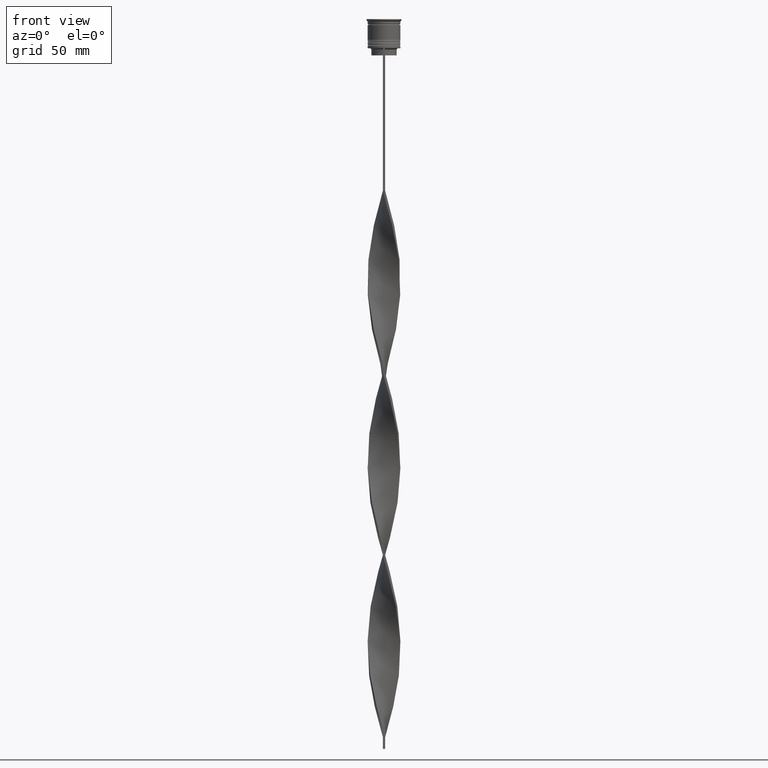
[diagram: clean part render]
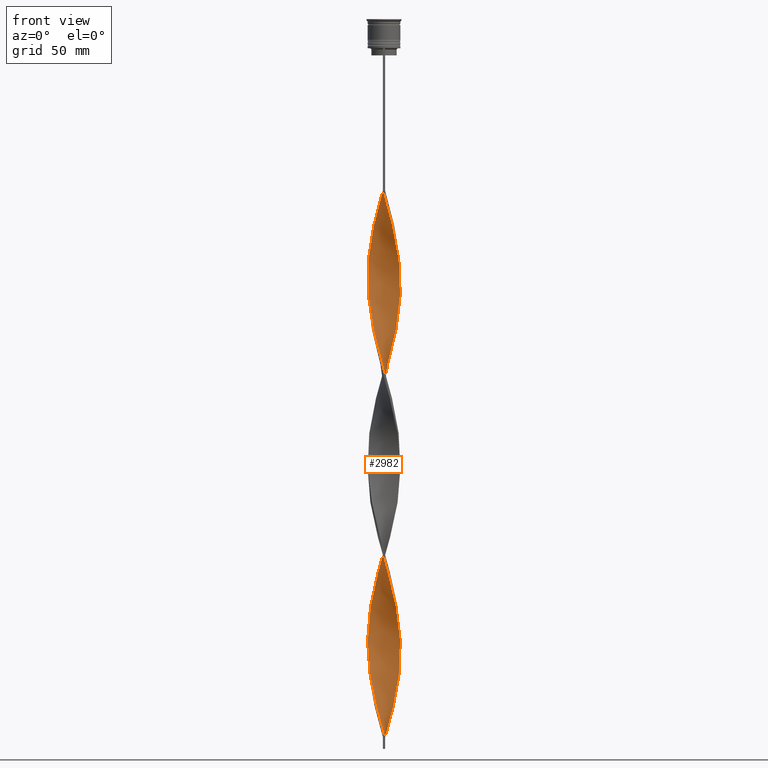
[diagram: same view with one face highlighted and labeled with its STEP entity id]
A machine part, front view. The second image highlights one B-rep face of the part: STEP entity #2982.
In plain terms, the highlighted face is a freeform B-spline surface patch.
Its self-contained STEP definition (entity closure, byte-faithful):
#10 = CARTESIAN_POINT ( 'NONE',  ( -6.464040919188346557, -2.732430236082641350, -202.1999999999999886 ) ) ;
#12 = CARTESIAN_POINT ( 'NONE',  ( -6.464040919188346557, -2.732430236082641350, -202.1999999999999886 ) ) ;
#20 = CARTESIAN_POINT ( 'NONE',  ( -1.588885425579185551, 6.835601151645851026, -77.40000000000000568 ) ) ;
#27 = CARTESIAN_POINT ( 'NONE',  ( -4.941572540085927834, -5.013572907112379795, -211.9499999999999886 ) ) ;
#29 = CARTESIAN_POINT ( 'NONE',  ( -6.944720379959849588, -1.151482222195760352, -196.3500000000000227 ) ) ;
#43 = CARTESIAN_POINT ( 'NONE',  ( -6.960649146587694958, -1.050911947772328769, -270.4500000000000455 ) ) ;
#49 = CARTESIAN_POINT ( 'NONE',  ( -5.957011586770867950, -3.709988268859835348, -206.0999999999999943 ) ) ;
#52 = CARTESIAN_POINT ( 'NONE',  ( 3.150435534158376516, 6.295221077053192893, -141.7500000000000000 ) ) ;
#63 = CARTESIAN_POINT ( 'NONE',  ( -6.295221077053197334, -3.150435534158376960, -278.2500000000000000 ) ) ;
#71 = CARTESIAN_POINT ( 'NONE',  ( -6.710553156704006206, 2.126858903386038335, -184.6500000000000057 ) ) ;
#74 = CARTESIAN_POINT ( 'NONE',  ( 4.178815248312734987, -5.665029177712287201, -247.0500000000000114 ) ) ;
#90 = CARTESIAN_POINT ( 'NONE',  ( -4.941572540085928722, 5.013572907112387789, -91.05000000000001137 ) ) ;
#93 = CARTESIAN_POINT ( 'NONE',  ( -1.151482222195763905, 6.944720379959848700, -157.3499999999999943 ) ) ;
#108 = CARTESIAN_POINT ( 'NONE',  ( -3.150435534158377404, 6.295221077053197334, -83.25000000000000000 ) ) ;
#128 = CARTESIAN_POINT ( 'NONE',  ( -6.960649146587694958, -1.050911947772328769, -114.4500000000000313 ) ) ;
#131 = CARTESIAN_POINT ( 'NONE',  ( 7.039350853412307707, 0.05091194777232845026, -270.4500000000000455 ) ) ;
#142 = CARTESIAN_POINT ( 'NONE',  ( 2.638647218772208536, -6.502887116878604878, -159.3000000000000114 ) ) ;
#150 = CARTESIAN_POINT ( 'NONE',  ( -0.5000000000000000000, 7.000000000000002665, -73.50000000000001421 ) ) ;
#162 = CARTESIAN_POINT ( 'NONE',  ( -0.05091194777233028906, -7.039350853412313036, -149.5500000000000398 ) ) ;
#172 = CARTESIAN_POINT ( 'NONE',  ( -4.519005263234787684, 5.369226334478397256, -89.10000000000000853 ) ) ;
#173 = CARTESIAN_POINT ( 'NONE',  ( 6.992035616686076871, 0.6011970849840463371, -272.3999999999999773 ) ) ;
#183 = CARTESIAN_POINT ( 'NONE',  ( 3.623436760271011803, -6.010050419448805137, -163.2000000000000171 ) ) ;
#190 = CARTESIAN_POINT ( 'NONE',  ( 5.303300858899108405, -4.596194077712562276, -170.9999999999999716 ) ) ;
#204 = CARTESIAN_POINT ( 'NONE',  ( -2.732430236082645347, -6.464040919188350109, -139.8000000000000114 ) ) ;
#212 = CARTESIAN_POINT ( 'NONE',  ( 3.241161289406943258, 6.248993995829452253, -215.8500000000000512 ) ) ;
#224 = CARTESIAN_POINT ( 'NONE',  ( -1.687590702477056670, -6.811904111253551442, -299.6999999999999886 ) ) ;
#231 = CARTESIAN_POINT ( 'NONE',  ( 4.596194077712562276, 5.303300858899107517, -210.0000000000000000 ) ) ;
#247 = LINE ( 'NONE', #3737, #359 ) ;
#250 = CARTESIAN_POINT ( 'NONE',  ( -1.687590702477056670, -6.811904111253551442, -143.6999999999999886 ) ) ;
#259 = CARTESIAN_POINT ( 'NONE',  ( 6.992035616686076871, 0.6011970849840463371, -116.4000000000000057 ) ) ;
#262 = CARTESIAN_POINT ( 'NONE',  ( 6.944720379959848700, 1.151482222195764349, -118.3500000000000085 ) ) ;
#266 = CARTESIAN_POINT ( 'NONE',  ( -5.724879761844410275, -4.096437986383647534, -282.1500000000000909 ) ) ;
#274 = CARTESIAN_POINT ( 'NONE',  ( 0.05091194777233409852, 7.039350853412313036, -227.5499999999999829 ) ) ;
#280 = CARTESIAN_POINT ( 'NONE',  ( 6.999999999999997335, -0.5000000000000004441, -112.5000000000000142 ) ) ;
#287 = CARTESIAN_POINT ( 'NONE',  ( -3.709988268859841121, -5.957011586770870615, -291.8999999999999773 ) ) ;
#300 = CARTESIAN_POINT ( 'NONE',  ( -6.999999999999997335, 0.5000000000000013323, -190.5000000000000000 ) ) ;
#313 = CARTESIAN_POINT ( 'NONE',  ( -2.223699182758346993, -6.679087842547251519, -297.7499999999999432 ) ) ;
#319 = CARTESIAN_POINT ( 'NONE',  ( -2.126858903386038779, -6.710553156704006206, -223.6500000000000341 ) ) ;
#321 = CARTESIAN_POINT ( 'NONE',  ( -6.710553156704006206, 2.126858903386038335, -184.6500000000000057 ) ) ;
#322 = B_SPLINE_CURVE_WITH_KNOTS ( 'NONE', 3,
 ( #2084, #1155, #3401, #1440 ),
 .UNSPECIFIED., .F., .F.,
 ( 4, 4 ),
 ( 0.000000000000000000, 1.000000000000000000 ),
 .UNSPECIFIED. ) ;
#329 = CARTESIAN_POINT ( 'NONE',  ( -3.150435534158377848, 6.295221077053198222, -83.25000000000000000 ) ) ;
#339 = CARTESIAN_POINT ( 'NONE',  ( 1.151482222195764793, -6.944720379959848700, -235.3500000000000227 ) ) ;
#341 = CARTESIAN_POINT ( 'NONE',  ( -0.5000000000000000000, -6.999999999999997335, -229.5000000000000000 ) ) ;
#355 = CARTESIAN_POINT ( 'NONE',  ( -7.039350853412307707, -0.05091194777233083030, -192.4500000000000171 ) ) ;
#358 = CARTESIAN_POINT ( 'NONE',  ( -6.999999999999997335, 0.5000000000000013323, -190.5000000000000000 ) ) ;
#359 = VECTOR ( 'NONE', #3783, 1000.000000000000000 ) ;
#370 = CARTESIAN_POINT ( 'NONE',  ( -0.5000000000000000000, 7.000000000000002665, -73.50000000000001421 ) ) ;
#378 = CARTESIAN_POINT ( 'NONE',  ( -4.096437986383643093, -5.724879761844404946, -215.8500000000000512 ) ) ;
#381 = CARTESIAN_POINT ( 'NONE',  ( 3.241161289406941037, -6.248993995829447812, -243.1500000000000057 ) ) ;
#404 = CARTESIAN_POINT ( 'NONE',  ( -1.588885425579185551, 6.835601151645851026, -77.40000000000000568 ) ) ;
#407 = CARTESIAN_POINT ( 'NONE',  ( 0.6011970849840467812, -6.992035616686076871, -233.4000000000000057 ) ) ;
#422 = CARTESIAN_POINT ( 'NONE',  ( -1.050911947772329436, 6.960649146587694958, -75.45000000000000284 ) ) ;
#425 = CARTESIAN_POINT ( 'NONE',  ( 6.811904111253547001, 1.687590702477053561, -276.3000000000000114 ) ) ;
#444 = CARTESIAN_POINT ( 'NONE',  ( 6.010050419448798920, -3.623436760271010471, -256.8000000000000114 ) ) ;
#447 = CARTESIAN_POINT ( 'NONE',  ( 2.638647218772208536, 6.502887116878598661, -299.6999999999999886 ) ) ;
#454 = CARTESIAN_POINT ( 'NONE',  ( -0.6011970849840483355, -6.992035616686081312, -147.6000000000000227 ) ) ;
#460 = CARTESIAN_POINT ( 'NONE',  ( 5.957011586770867062, 3.709988268859835348, -284.1000000000000227 ) ) ;
#463 = CARTESIAN_POINT ( 'NONE',  ( 6.679087842547245302, 2.223699182758343884, -278.2500000000000000 ) ) ;
#464 = EDGE_CURVE ( 'NONE', #3426, #2843, #247, .T. ) ;
#475 = CARTESIAN_POINT ( 'NONE',  ( 6.710553156704011535, 2.126858903386037003, -196.3500000000000227 ) ) ;
#479 = CARTESIAN_POINT ( 'NONE',  ( 6.464040919188345669, 2.732430236082642239, -280.1999999999999886 ) ) ;
#492 = CARTESIAN_POINT ( 'NONE',  ( 6.295221077053197334, 3.150435534158379625, -200.2500000000000000 ) ) ;
#500 = CARTESIAN_POINT ( 'NONE',  ( -3.709988268859841121, -5.957011586770870615, -135.9000000000000341 ) ) ;
#511 = CARTESIAN_POINT ( 'NONE',  ( -6.944720379959853140, 1.151482222195766347, -106.6500000000000199 ) ) ;
#520 = CARTESIAN_POINT ( 'NONE',  ( -5.303300858899108405, 4.596194077712561388, -249.0000000000000000 ) ) ;
#535 = CARTESIAN_POINT ( 'NONE',  ( -6.464040919188350109, 2.732430236082644903, -100.7999999999999972 ) ) ;
#542 = CARTESIAN_POINT ( 'NONE',  ( 6.992035616686081312, -0.6011970849840487796, -186.5999999999999943 ) ) ;
#549 = CARTESIAN_POINT ( 'NONE',  ( 3.709988268859836236, -5.957011586770867062, -89.10000000000000853 ) ) ;
#559 = CARTESIAN_POINT ( 'NONE',  ( 4.096437986383647534, -5.724879761844409387, -165.1500000000000341 ) ) ;
#566 = CARTESIAN_POINT ( 'NONE',  ( 0.6011970849840467812, -6.992035616686076871, -77.40000000000000568 ) ) ;
#568 = CARTESIAN_POINT ( 'NONE',  ( 1.151482222195764793, -6.944720379959847811, -79.35000000000002274 ) ) ;
#571 = CARTESIAN_POINT ( 'NONE',  ( -4.178815248312738539, -5.665029177712290753, -289.9500000000001023 ) ) ;
#577 = CARTESIAN_POINT ( 'NONE',  ( -6.248993995829451364, 3.241161289406944590, -254.8500000000000227 ) ) ;
#585 = CARTESIAN_POINT ( 'NONE',  ( 6.710553156704005318, -2.126858903386040556, -106.6500000000000199 ) ) ;
#593 = CARTESIAN_POINT ( 'NONE',  ( -1.151482222195766791, -6.944720379959853140, -301.6500000000000341 ) ) ;
#610 = CARTESIAN_POINT ( 'NONE',  ( 6.999999999999997335, -0.5000000000000004441, -112.5000000000000142 ) ) ;
#620 = CARTESIAN_POINT ( 'NONE',  ( -4.178815248312738539, -5.665029177712290753, -289.9500000000001023 ) ) ;
#628 = CARTESIAN_POINT ( 'NONE',  ( -6.992035616686076871, -0.6011970849840454489, -194.4000000000000057 ) ) ;
#632 = CARTESIAN_POINT ( 'NONE',  ( 4.941572540085925169, 5.013572907112383348, -133.9500000000000455 ) ) ;
#635 = CARTESIAN_POINT ( 'NONE',  ( -2.223699182758346993, -6.679087842547250631, -297.7499999999999432 ) ) ;
#641 = CARTESIAN_POINT ( 'NONE',  ( -4.941572540085927834, 5.013572907112386901, -91.05000000000001137 ) ) ;
#647 = CARTESIAN_POINT ( 'NONE',  ( -2.732430236082641350, 6.464040919188345669, -163.2000000000000171 ) ) ;
#649 = CARTESIAN_POINT ( 'NONE',  ( 4.096437986383645757, 5.724879761844404946, -137.8499999999999943 ) ) ;
#667 = CARTESIAN_POINT ( 'NONE',  ( -4.178815248312733210, 5.665029177712288089, -169.0499999999999829 ) ) ;
#670 = CARTESIAN_POINT ( 'NONE',  ( -5.369226334478392815, 4.519005263234785019, -174.9000000000000057 ) ) ;
#688 = CARTESIAN_POINT ( 'NONE',  ( 0.05091194777232899149, -7.039350853412307707, -231.4500000000000455 ) ) ;
#691 = CARTESIAN_POINT ( 'NONE',  ( 2.223699182758343884, -6.679087842547245302, -239.2500000000000284 ) ) ;
#708 = CARTESIAN_POINT ( 'NONE',  ( -6.835601151645851026, -1.588885425579185107, -116.4000000000000057 ) ) ;
#711 = CARTESIAN_POINT ( 'NONE',  ( -5.303300858899105741, -4.596194077712556059, -210.0000000000000000 ) ) ;
#730 = CARTESIAN_POINT ( 'NONE',  ( -6.010050419448805137, -3.623436760271012247, -124.2000000000000028 ) ) ;
#733 = CARTESIAN_POINT ( 'NONE',  ( 2.126858903386041000, 6.710553156704005318, -301.6500000000000341 ) ) ;
#749 = CARTESIAN_POINT ( 'NONE',  ( -4.596194077712561388, -5.303300858899108405, -132.0000000000000000 ) ) ;
#752 = CARTESIAN_POINT ( 'NONE',  ( 6.248993995829447812, 3.241161289406941037, -282.1500000000000909 ) ) ;
#763 = CARTESIAN_POINT ( 'NONE',  ( 0.4999999999999991673, -7.000000000000002665, -151.5000000000000284 ) ) ;
#773 = CARTESIAN_POINT ( 'NONE',  ( 4.941572540085925169, 5.013572907112384236, -289.9500000000001023 ) ) ;
#774 = CARTESIAN_POINT ( 'NONE',  ( 6.944720379959848700, 1.151482222195764349, -274.3499999999999659 ) ) ;
#782 = CARTESIAN_POINT ( 'NONE',  ( 7.000000000000002665, 0.4999999999999987232, -190.5000000000000000 ) ) ;
#789 = CARTESIAN_POINT ( 'NONE',  ( 5.013572907112384236, -4.941572540085925169, -250.9499999999999602 ) ) ;
#791 = CARTESIAN_POINT ( 'NONE',  ( 6.295221077053192893, -3.150435534158376516, -258.7500000000001137 ) ) ;
#805 = CARTESIAN_POINT ( 'NONE',  ( 4.096437986383647534, -5.724879761844410275, -165.1500000000000341 ) ) ;
#809 = CARTESIAN_POINT ( 'NONE',  ( 5.013572907112386012, 4.941572540085929610, -208.0500000000000398 ) ) ;
#810 = CARTESIAN_POINT ( 'NONE',  ( 6.502887116878598661, -2.638647218772208092, -260.6999999999999886 ) ) ;
#821 = CARTESIAN_POINT ( 'NONE',  ( 4.596194077712562276, 5.303300858899107517, -210.0000000000000000 ) ) ;
#827 = CARTESIAN_POINT ( 'NONE',  ( -3.623436760271012247, 6.010050419448805137, -241.1999999999999886 ) ) ;
#837 = CARTESIAN_POINT ( 'NONE',  ( 4.941572540085927834, -5.013572907112387789, -169.0500000000000114 ) ) ;
#844 = CARTESIAN_POINT ( 'NONE',  ( 0.4999999999999991673, -7.000000000000002665, -151.5000000000000284 ) ) ;
#857 = CARTESIAN_POINT ( 'NONE',  ( -6.502887116878604878, -2.638647218772208980, -276.3000000000000114 ) ) ;
#864 = CARTESIAN_POINT ( 'NONE',  ( -4.519005263234787684, 5.369226334478397256, -245.1000000000000227 ) ) ;
#874 = CARTESIAN_POINT ( 'NONE',  ( 6.960649146587689629, -1.050911947772329214, -110.5500000000000114 ) ) ;
#878 = CARTESIAN_POINT ( 'NONE',  ( -6.710553156704010647, -2.126858903386041000, -274.3499999999999659 ) ) ;
#887 = CARTESIAN_POINT ( 'NONE',  ( -6.464040919188350109, 2.732430236082644903, -256.8000000000000114 ) ) ;
#894 = VERTEX_POINT ( 'NONE', #1124 ) ;
#900 = CARTESIAN_POINT ( 'NONE',  ( 6.679087842547245302, 2.223699182758343884, -122.2500000000000142 ) ) ;
#903 = CARTESIAN_POINT ( 'NONE',  ( -6.295221077053198222, -3.150435534158377404, -278.2500000000000000 ) ) ;
#939 = CARTESIAN_POINT ( 'NONE',  ( -2.638647218772209868, -6.502887116878598661, -221.7000000000000171 ) ) ;
#942 = CARTESIAN_POINT ( 'NONE',  ( -2.732430236082641350, 6.464040919188345669, -163.2000000000000171 ) ) ;
#947 = CARTESIAN_POINT ( 'NONE',  ( -1.050911947772329436, 6.960649146587694069, -231.4500000000000171 ) ) ;
#949 = VERTEX_POINT ( 'NONE', #2787 ) ;
#953 = CARTESIAN_POINT ( 'NONE',  ( -4.519005263234787684, 5.369226334478397256, -89.10000000000000853 ) ) ;
#961 = CARTESIAN_POINT ( 'NONE',  ( -5.303300858899105741, -4.596194077712556059, -210.0000000000000000 ) ) ;
#964 = CARTESIAN_POINT ( 'NONE',  ( -2.638647218772209868, -6.502887116878598661, -221.7000000000000171 ) ) ;
#971 = CARTESIAN_POINT ( 'NONE',  ( -6.010050419448805137, -3.623436760271012247, -280.1999999999999886 ) ) ;
#978 = CARTESIAN_POINT ( 'NONE',  ( 2.126858903386041000, 6.710553156704005318, -145.6500000000000341 ) ) ;
#982 = CARTESIAN_POINT ( 'NONE',  ( -5.957011586770867950, -3.709988268859835348, -206.0999999999999943 ) ) ;
#991 = CARTESIAN_POINT ( 'NONE',  ( -0.6011970849840483355, -6.992035616686081312, -303.5999999999999659 ) ) ;
#996 = ORIENTED_EDGE ( 'NONE', *, *, #3055, .T. ) ;
#1000 = CARTESIAN_POINT ( 'NONE',  ( -1.687590702477053117, 6.811904111253547001, -159.3000000000000114 ) ) ;
#1003 = CARTESIAN_POINT ( 'NONE',  ( -7.039350853412307707, -0.05091194777233083030, -192.4500000000000455 ) ) ;
#1019 = CARTESIAN_POINT ( 'NONE',  ( 4.096437986383644869, 5.724879761844404058, -137.8499999999999943 ) ) ;
#1022 = CARTESIAN_POINT ( 'NONE',  ( 5.957011586770867062, 3.709988268859835348, -128.0999999999999943 ) ) ;
#1040 = CARTESIAN_POINT ( 'NONE',  ( -6.502887116878604878, -2.638647218772208980, -120.2999999999999972 ) ) ;
#1043 = CARTESIAN_POINT ( 'NONE',  ( 6.010050419448798920, -3.623436760271010471, -256.8000000000000114 ) ) ;
#1062 = CARTESIAN_POINT ( 'NONE',  ( -2.638647218772209424, 6.502887116878603990, -81.30000000000001137 ) ) ;
#1065 = CARTESIAN_POINT ( 'NONE',  ( 1.050911947772329880, 6.960649146587689629, -305.5500000000000114 ) ) ;
#1079 = CARTESIAN_POINT ( 'NONE',  ( -6.248993995829451364, 3.241161289406944590, -98.85000000000002274 ) ) ;
#1085 = CARTESIAN_POINT ( 'NONE',  ( 5.665029177712287201, 4.178815248312733210, -286.0500000000000114 ) ) ;
#1097 = CARTESIAN_POINT ( 'NONE',  ( 6.679087842547248854, -2.223699182758350101, -180.7500000000000568 ) ) ;
#1104 = CARTESIAN_POINT ( 'NONE',  ( 5.369226334478393703, -4.519005263234784131, -252.9000000000000057 ) ) ;
#1114 = CARTESIAN_POINT ( 'NONE',  ( 5.369226334478399032, 4.519005263234785907, -206.0999999999999943 ) ) ;
#1121 = CARTESIAN_POINT ( 'NONE',  ( -6.992035616686082200, 0.6011970849840480025, -108.6000000000000085 ) ) ;
#1124 = CARTESIAN_POINT ( 'NONE',  ( 0.5000000000000008882, 6.999999999999997335, -307.5000000000000000 ) ) ;
#1133 = CARTESIAN_POINT ( 'NONE',  ( 6.992035616686081312, -0.6011970849840487796, -186.5999999999999943 ) ) ;
#1134 = ORIENTED_EDGE ( 'NONE', *, *, #3828, .F. ) ;
#1137 = CARTESIAN_POINT ( 'NONE',  ( -0.5000000000000000000, 7.000000000000002665, -229.5000000000000000 ) ) ;
#1148 = CARTESIAN_POINT ( 'NONE',  ( -6.992035616686082200, 0.6011970849840480025, -108.6000000000000085 ) ) ;
#1154 = CARTESIAN_POINT ( 'NONE',  ( 2.732430236082646235, 6.464040919188350109, -217.7999999999999829 ) ) ;
#1155 = CARTESIAN_POINT ( 'NONE',  ( 0.5000000000000003331, 2.333333333333331261, -307.5000000000000000 ) ) ;
#1167 = CARTESIAN_POINT ( 'NONE',  ( -6.960649146587694069, -1.050911947772328769, -270.4500000000000455 ) ) ;
#1171 = CARTESIAN_POINT ( 'NONE',  ( -1.588885425579185551, 6.835601151645851026, -233.4000000000000057 ) ) ;
#1183 = CARTESIAN_POINT ( 'NONE',  ( 1.687590702477054005, -6.811904111253546112, -81.30000000000001137 ) ) ;
#1187 = CARTESIAN_POINT ( 'NONE',  ( -6.679087842547250631, 2.223699182758346549, -258.7500000000001137 ) ) ;
#1194 = CARTESIAN_POINT ( 'NONE',  ( -4.941572540085928722, 5.013572907112387789, -247.0500000000000114 ) ) ;
#1215 = CARTESIAN_POINT ( 'NONE',  ( 3.150435534158376516, -6.295221077053198222, -161.2500000000000568 ) ) ;
#1230 = CARTESIAN_POINT ( 'NONE',  ( -0.05091194777233028906, -7.039350853412313036, -305.5500000000000114 ) ) ;
#1234 = CARTESIAN_POINT ( 'NONE',  ( -5.724879761844409387, -4.096437986383647534, -282.1500000000000909 ) ) ;
#1244 = CARTESIAN_POINT ( 'NONE',  ( 5.303300858899104853, 4.596194077712556947, -132.0000000000000000 ) ) ;
#1247 = CARTESIAN_POINT ( 'NONE',  ( 5.724879761844404946, -4.096437986383645757, -98.85000000000002274 ) ) ;
#1266 = CARTESIAN_POINT ( 'NONE',  ( -1.050911947772333654, -6.960649146587689629, -227.5499999999999829 ) ) ;
#1268 = CARTESIAN_POINT ( 'NONE',  ( 1.588885425579185329, 6.835601151645846585, -147.6000000000000227 ) ) ;
#1275 = CARTESIAN_POINT ( 'NONE',  ( -5.957011586770871503, 3.709988268859839788, -96.90000000000001990 ) ) ;
#1283 = CARTESIAN_POINT ( 'NONE',  ( -4.596194077712556947, 5.303300858899105741, -170.9999999999999716 ) ) ;
#1287 = CARTESIAN_POINT ( 'NONE',  ( -6.502887116878598661, 2.638647218772208980, -182.6999999999999886 ) ) ;
#1303 = CARTESIAN_POINT ( 'NONE',  ( 2.223699182758344328, -6.679087842547246190, -239.2500000000000000 ) ) ;
#1306 = CARTESIAN_POINT ( 'NONE',  ( -5.724879761844406723, 4.096437986383643981, -176.8500000000000227 ) ) ;
#1315 = CARTESIAN_POINT ( 'NONE',  ( -2.223699182758346993, -6.679087842547250631, -141.7500000000000000 ) ) ;
#1323 = CARTESIAN_POINT ( 'NONE',  ( 3.623436760271010915, 6.010050419448798920, -139.8000000000000114 ) ) ;
#1326 = CARTESIAN_POINT ( 'NONE',  ( 4.596194077712557835, -5.303300858899104853, -249.0000000000000000 ) ) ;
#1345 = CARTESIAN_POINT ( 'NONE',  ( -5.303300858899108405, 4.596194077712561388, -93.00000000000001421 ) ) ;
#1348 = CARTESIAN_POINT ( 'NONE',  ( 5.303300858899104853, 4.596194077712556947, -132.0000000000000000 ) ) ;
#1363 = CARTESIAN_POINT ( 'NONE',  ( -6.679087842547251519, 2.223699182758346549, -102.7500000000000284 ) ) ;
#1385 = CARTESIAN_POINT ( 'NONE',  ( 5.724879761844404058, -4.096437986383644869, -254.8500000000000227 ) ) ;
#1387 = CARTESIAN_POINT ( 'NONE',  ( 3.623436760271010915, 6.010050419448798920, -295.8000000000000114 ) ) ;
#1397 = CARTESIAN_POINT ( 'NONE',  ( -3.709988268859841121, -5.957011586770870615, -135.9000000000000341 ) ) ;
#1402 = CARTESIAN_POINT ( 'NONE',  ( 1.050911947772329880, 6.960649146587689629, -305.5500000000000114 ) ) ;
#1403 = CARTESIAN_POINT ( 'NONE',  ( 4.519005263234785019, 5.369226334478392815, -291.8999999999999773 ) ) ;
#1412 = CARTESIAN_POINT ( 'NONE',  ( 6.010050419448806025, 3.623436760271011803, -202.1999999999999886 ) ) ;
#1418 = CARTESIAN_POINT ( 'NONE',  ( -6.248993995829451364, 3.241161289406944590, -98.85000000000002274 ) ) ;
#1429 = CARTESIAN_POINT ( 'NONE',  ( 2.732430236082646235, 6.464040919188350109, -217.7999999999999829 ) ) ;
#1438 = CARTESIAN_POINT ( 'NONE',  ( 6.835601151645851026, 1.588885425579184218, -194.4000000000000057 ) ) ;
#1440 = CARTESIAN_POINT ( 'NONE',  ( 0.4999999999999991673, -7.000000000000002665, -307.5000000000000000 ) ) ;
#1447 = CARTESIAN_POINT ( 'NONE',  ( -0.5000000000000000000, -6.999999999999997335, -73.50000000000001421 ) ) ;
#1450 = CARTESIAN_POINT ( 'NONE',  ( 4.519005263234786796, -5.369226334478397256, -167.0999999999999943 ) ) ;
#1454 = CARTESIAN_POINT ( 'NONE',  ( 1.687590702477057558, 6.811904111253551442, -221.7000000000000171 ) ) ;
#1463 = FACE_OUTER_BOUND ( 'NONE', #3514, .T. ) ;
#1470 = CARTESIAN_POINT ( 'NONE',  ( -3.150435534158377848, 6.295221077053198222, -239.2500000000000284 ) ) ;
#1476 = CARTESIAN_POINT ( 'NONE',  ( 5.957011586770870615, -3.709988268859841121, -174.9000000000000057 ) ) ;
#1484 = CARTESIAN_POINT ( 'NONE',  ( 5.013572907112384236, -4.941572540085925169, -94.95000000000001705 ) ) ;
#1486 = CARTESIAN_POINT ( 'NONE',  ( 0.6011970849840467812, -6.992035616686076871, -77.40000000000000568 ) ) ;
#1497 = CARTESIAN_POINT ( 'NONE',  ( 5.724879761844411163, 4.096437986383643981, -204.1500000000000341 ) ) ;
#1506 = CARTESIAN_POINT ( 'NONE',  ( 6.502887116878598661, -2.638647218772208092, -104.7000000000000171 ) ) ;
#1514 = CARTESIAN_POINT ( 'NONE',  ( -6.010050419448805137, -3.623436760271012247, -280.1999999999999886 ) ) ;
#1521 = CARTESIAN_POINT ( 'NONE',  ( 2.126858903386040556, -6.710553156704011535, -157.3499999999999659 ) ) ;
#1532 = CARTESIAN_POINT ( 'NONE',  ( 2.223699182758343884, -6.679087842547245302, -83.25000000000000000 ) ) ;
#1551 = CARTESIAN_POINT ( 'NONE',  ( 1.588885425579185329, 6.835601151645846585, -147.6000000000000227 ) ) ;
#1554 = CARTESIAN_POINT ( 'NONE',  ( 3.241161289406941037, -6.248993995829447812, -87.15000000000001990 ) ) ;
#1557 = CARTESIAN_POINT ( 'NONE',  ( -6.992035616686082200, 0.6011970849840480025, -264.6000000000000227 ) ) ;
#1571 = CARTESIAN_POINT ( 'NONE',  ( -6.835601151645846585, 1.588885425579185773, -186.5999999999999943 ) ) ;
#1573 = CARTESIAN_POINT ( 'NONE',  ( -3.150435534158380513, -6.295221077053191117, -219.7500000000000284 ) ) ;
#1582 = CARTESIAN_POINT ( 'NONE',  ( -5.665029177712290753, 4.178815248312736763, -94.95000000000001705 ) ) ;
#1589 = CARTESIAN_POINT ( 'NONE',  ( 0.5000000000000008882, 6.999999999999997335, -151.5000000000000284 ) ) ;
#1591 = CARTESIAN_POINT ( 'NONE',  ( 0.5000000000000008882, 6.999999999999997335, -151.5000000000000284 ) ) ;
#1608 = CARTESIAN_POINT ( 'NONE',  ( 1.050911947772329880, 6.960649146587689629, -149.5500000000000682 ) ) ;
#1612 = CARTESIAN_POINT ( 'NONE',  ( -4.941572540085926946, -5.013572907112378907, -211.9499999999999886 ) ) ;
#1621 = CARTESIAN_POINT ( 'NONE',  ( -1.050911947772329436, 6.960649146587694069, -75.45000000000000284 ) ) ;
#1628 = CARTESIAN_POINT ( 'NONE',  ( -3.709988268859835348, 5.957011586770867062, -167.0999999999999943 ) ) ;
#1631 = CARTESIAN_POINT ( 'NONE',  ( 3.709988268859836236, -5.957011586770867062, -245.1000000000000227 ) ) ;
#1651 = CARTESIAN_POINT ( 'NONE',  ( 3.150435534158376072, 6.295221077053192005, -297.7499999999999432 ) ) ;
#1654 = CARTESIAN_POINT ( 'NONE',  ( 1.687590702477054005, -6.811904111253546112, -237.3000000000000114 ) ) ;
#1671 = CARTESIAN_POINT ( 'NONE',  ( -6.944720379959854029, 1.151482222195766569, -106.6500000000000199 ) ) ;
#1674 = CARTESIAN_POINT ( 'NONE',  ( 1.588885425579185329, 6.835601151645846585, -303.5999999999999659 ) ) ;
#1694 = CARTESIAN_POINT ( 'NONE',  ( 2.126858903386041000, 6.710553156704005318, -301.6500000000000341 ) ) ;
#1697 = CARTESIAN_POINT ( 'NONE',  ( 6.835601151645846585, -1.588885425579185107, -264.6000000000000227 ) ) ;
#1707 = CARTESIAN_POINT ( 'NONE',  ( -5.013572907112386901, -4.941572540085927834, -130.0500000000000114 ) ) ;
#1714 = CARTESIAN_POINT ( 'NONE',  ( 3.623436760271010915, 6.010050419448798920, -295.8000000000000114 ) ) ;
#1715 = CARTESIAN_POINT ( 'NONE',  ( 0.5000000000000008882, 6.999999999999997335, -307.5000000000000000 ) ) ;
#1724 = CARTESIAN_POINT ( 'NONE',  ( 6.502887116878604878, 2.638647218772208092, -198.3000000000000114 ) ) ;
#1727 =( BOUNDED_CURVE ( )  B_SPLINE_CURVE ( 2, ( #1841, #2744, #1486, #568, #1183, #1532, #2475, #1554, #3458, #2131, #3775, #4019, #2837, #1247, #2519, #3413, #2454, #3729, #2789, #874, #610, #1865, #3106, #262, #3753, #900, #2157, #3130, #1022, #3208, #1348, #632, #2289, #649, #1904, #52, #1947, #1887, #1268, #2936, #1591, #2873, #3863, #93, #3251, #3802, #942, #2896, #3480, #3542, #3522, #2202, #670, #1306, #2915, #3174, #1287, #321, #3562, #2578, #358, #1003, #2538, #29, #3821, #2558, #12, #3501, #982, #2857, #711, #1612, #2597, #1965, #2243, #1573, #964, #3192, #2268, #2222, #341, #3841, #407, #1927, #1654, #691, #3229, #381, #1631, #74, #1326, #3881, #3310, #3347, #1043, #791, #810, #3899, #1697, #2698, #3015, #131, #173, #774, #425, #463, #2972, #752, #3939, #2306, #2046, #2011, #1403, #3583, #1387, #3920, #447, #733, #1674, #1065, #1715 ),
 .UNSPECIFIED., .F., .T. ) 
 B_SPLINE_CURVE_WITH_KNOTS ( ( 3, 2, 2, 2, 2, 2, 2, 2, 2, 2, 2, 2, 2, 2, 2, 2, 2, 2, 2, 2, 2, 2, 2, 2, 2, 2, 2, 2, 2, 2, 2, 2, 2, 2, 2, 2, 2, 2, 2, 2, 2, 2, 2, 2, 2, 2, 2, 2, 2, 2, 2, 2, 2, 2, 2, 2, 2, 2, 2, 2, 3 ),
 ( 0.000000000000000000, 0.01250000000000000243, 0.02500000000000000486, 0.03749999999999999861, 0.05000000000000000971, 0.06250000000000000000, 0.07499999999999999722, 0.08749999999999998057, 0.1000000000000000194, 0.1125000000000000028, 0.1250000000000000000, 0.1375000000000000111, 0.1499999999999999944, 0.1625000000000000056, 0.1749999999999999611, 0.1875000000000000000, 0.2000000000000000389, 0.2124999999999999944, 0.2250000000000000056, 0.2374999999999999611, 0.2500000000000000000, 0.2625000000000000111, 0.2750000000000000222, 0.2874999999999999778, 0.2999999999999999889, 0.3125000000000000000, 0.3250000000000000111, 0.3375000000000000777, 0.3499999999999999223, 0.3624999999999999889, 0.3750000000000000000, 0.3875000000000000111, 0.4000000000000000777, 0.4124999999999999223, 0.4249999999999999889, 0.4375000000000000000, 0.4500000000000000111, 0.4625000000000000777, 0.4749999999999999223, 0.4874999999999999889, 0.5000000000000000000, 0.5124999999999999556, 0.5250000000000000222, 0.5374999999999999778, 0.5500000000000000444, 0.5625000000000000000, 0.5749999999999999556, 0.5875000000000000222, 0.5999999999999999778, 0.6125000000000000444, 0.6250000000000000000, 0.6374999999999999556, 0.6500000000000000222, 0.6624999999999999778, 0.6750000000000001554, 0.6875000000000000000, 0.6999999999999998446, 0.7125000000000000222, 0.7249999999999999778, 0.7375000000000001554, 0.7500000000000000000 ),
 .UNSPECIFIED. ) 
 CURVE ( )  GEOMETRIC_REPRESENTATION_ITEM ( )  RATIONAL_B_SPLINE_CURVE ( ( 1.000000000000000000, 0.9969173337331279638, 1.000000000000000000, 0.9969173337331279638, 1.000000000000000000, 0.9969173337331279638, 1.000000000000000000, 0.9969173337331279638, 1.000000000000000000, 0.9969173337331279638, 1.000000000000000000, 0.9969173337331279638, 1.000000000000000000, 0.9969173337331279638, 1.000000000000000000, 0.9969173337331279638, 1.000000000000000000, 0.9969173337331279638, 1.000000000000000000, 0.9969173337331279638, 1.000000000000000000, 0.9969173337331279638, 1.000000000000000000, 0.9969173337331279638, 1.000000000000000000, 0.9969173337331279638, 1.000000000000000000, 0.9969173337331279638, 1.000000000000000000, 0.9969173337331279638, 1.000000000000000000, 0.9969173337331279638, 1.000000000000000000, 0.9969173337331279638, 1.000000000000000000, 0.9969173337331279638, 1.000000000000000000, 0.9969173337331279638, 1.000000000000000000, 0.9969173337331279638, 1.000000000000000000, 0.9969173337331279638, 1.000000000000000000, 0.9969173337331279638, 1.000000000000000000, 0.9969173337331279638, 1.000000000000000000, 0.9969173337331279638, 1.000000000000000000, 0.9969173337331279638, 1.000000000000000000, 0.9969173337331279638, 1.000000000000000000, 0.9969173337331279638, 1.000000000000000000, 0.9969173337331279638, 1.000000000000000000, 0.9969173337331279638, 1.000000000000000000, 0.9969173337331279638, 1.000000000000000000, 0.9969173337331279638, 1.000000000000000000, 0.9969173337331279638, 1.000000000000000000, 0.9969173337331279638, 1.000000000000000000, 0.9969173337331279638, 1.000000000000000000, 0.9969173337331279638, 1.000000000000000000, 0.9969173337331279638, 1.000000000000000000, 0.9969173337331279638, 1.000000000000000000, 0.9969173337331279638, 1.000000000000000000, 0.9969173337331279638, 1.000000000000000000, 0.9969173337331279638, 1.000000000000000000, 0.9969173337331279638, 1.000000000000000000, 0.9969173337331279638, 1.000000000000000000, 0.9969173337331279638, 1.000000000000000000, 0.9969173337331279638, 1.000000000000000000, 0.9969173337331279638, 1.000000000000000000, 0.9969173337331279638, 1.000000000000000000, 0.9969173337331279638, 1.000000000000000000, 0.9969173337331279638, 1.000000000000000000, 0.9969173337331279638, 1.000000000000000000, 0.9969173337331279638, 1.000000000000000000, 0.9969173337331279638, 1.000000000000000000, 0.9969173337331279638, 1.000000000000000000, 0.9969173337331279638, 1.000000000000000000, 0.9969173337331279638, 1.000000000000000000, 0.9969173337331279638, 1.000000000000000000, 0.9969173337331279638, 1.000000000000000000, 0.9969173337331279638, 1.000000000000000000, 0.9969173337331279638, 1.000000000000000000, 0.9969173337331279638, 1.000000000000000000, 0.9969173337331279638, 1.000000000000000000 ) ) 
 REPRESENTATION_ITEM ( '' )  );
#1729 = CARTESIAN_POINT ( 'NONE',  ( -2.126858903386041444, 6.710553156704010647, -79.35000000000002274 ) ) ;
#1742 = CARTESIAN_POINT ( 'NONE',  ( -6.835601151645851026, -1.588885425579185107, -116.4000000000000057 ) ) ;
#1750 = CARTESIAN_POINT ( 'NONE',  ( 6.010050419448806025, 3.623436760271011803, -202.1999999999999886 ) ) ;
#1761 = CARTESIAN_POINT ( 'NONE',  ( -4.596194077712561388, -5.303300858899108405, -132.0000000000000000 ) ) ;
#1769 = CARTESIAN_POINT ( 'NONE',  ( -3.241161289406944590, -6.248993995829451364, -137.8499999999999943 ) ) ;
#1783 = CARTESIAN_POINT ( 'NONE',  ( -6.010050419448805137, -3.623436760271012247, -124.2000000000000028 ) ) ;
#1790 = CARTESIAN_POINT ( 'NONE',  ( 4.178815248312741204, 5.665029177712288977, -211.9499999999999886 ) ) ;
#1797 = CARTESIAN_POINT ( 'NONE',  ( 4.178815248312734987, -5.665029177712287201, -91.05000000000001137 ) ) ;
#1803 = CARTESIAN_POINT ( 'NONE',  ( -6.944720379959853140, 1.151482222195766347, -262.6499999999999773 ) ) ;
#1809 = CARTESIAN_POINT ( 'NONE',  ( -2.638647218772209424, 6.502887116878603990, -237.3000000000000114 ) ) ;
#1817 = CARTESIAN_POINT ( 'NONE',  ( 2.223699182758344328, -6.679087842547246190, -83.25000000000000000 ) ) ;
#1824 = CARTESIAN_POINT ( 'NONE',  ( -5.013572907112386901, -4.941572540085927834, -286.0500000000000114 ) ) ;
#1828 = CARTESIAN_POINT ( 'NONE',  ( -0.6011970849840483355, -6.992035616686081312, -147.6000000000000227 ) ) ;
#1841 = CARTESIAN_POINT ( 'NONE',  ( -0.5000000000000000000, -6.999999999999997335, -73.50000000000001421 ) ) ;
#1854 = CARTESIAN_POINT ( 'NONE',  ( -2.732430236082645347, -6.464040919188350109, -295.8000000000000114 ) ) ;
#1862 = CARTESIAN_POINT ( 'NONE',  ( -0.05091194777232811719, 7.039350853412307707, -153.4499999999999886 ) ) ;
#1865 = CARTESIAN_POINT ( 'NONE',  ( 7.039350853412307707, 0.05091194777232845026, -114.4500000000000171 ) ) ;
#1868 = CARTESIAN_POINT ( 'NONE',  ( -5.957011586770871503, 3.709988268859839788, -252.9000000000000057 ) ) ;
#1884 = CARTESIAN_POINT ( 'NONE',  ( -6.944720379959850476, -1.151482222195760574, -196.3500000000000227 ) ) ;
#1887 = CARTESIAN_POINT ( 'NONE',  ( 2.126858903386041000, 6.710553156704005318, -145.6500000000000341 ) ) ;
#1890 = CARTESIAN_POINT ( 'NONE',  ( -7.000000000000002665, -0.4999999999999995559, -268.4999999999999432 ) ) ;
#1894 = CARTESIAN_POINT ( 'NONE',  ( -5.303300858899108405, 4.596194077712561388, -93.00000000000001421 ) ) ;
#1902 = CARTESIAN_POINT ( 'NONE',  ( 6.248993995829447812, 3.241161289406941481, -126.1500000000000199 ) ) ;
#1904 = CARTESIAN_POINT ( 'NONE',  ( 3.623436760271010915, 6.010050419448798920, -139.8000000000000114 ) ) ;
#1923 = CARTESIAN_POINT ( 'NONE',  ( 4.519005263234785019, 5.369226334478392815, -135.9000000000000341 ) ) ;
#1927 = CARTESIAN_POINT ( 'NONE',  ( 1.151482222195764793, -6.944720379959847811, -235.3500000000000227 ) ) ;
#1936 = CARTESIAN_POINT ( 'NONE',  ( -7.039350853412313036, 0.05091194777232976171, -266.5500000000000114 ) ) ;
#1943 = CARTESIAN_POINT ( 'NONE',  ( 3.709988268859836236, -5.957011586770867062, -245.1000000000000227 ) ) ;
#1947 = CARTESIAN_POINT ( 'NONE',  ( 2.638647218772208536, 6.502887116878598661, -143.6999999999999886 ) ) ;
#1962 = CARTESIAN_POINT ( 'NONE',  ( 4.178815248312734987, -5.665029177712287201, -247.0500000000000114 ) ) ;
#1965 = CARTESIAN_POINT ( 'NONE',  ( -4.096437986383643981, -5.724879761844405834, -215.8500000000000512 ) ) ;
#1986 = CARTESIAN_POINT ( 'NONE',  ( -5.369226334478397256, -4.519005263234786796, -128.0999999999999943 ) ) ;
#2008 = CARTESIAN_POINT ( 'NONE',  ( 5.303300858899104853, 4.596194077712556947, -288.0000000000000568 ) ) ;
#2011 = CARTESIAN_POINT ( 'NONE',  ( 4.941572540085925169, 5.013572907112383348, -289.9500000000001023 ) ) ;
#2020 = CARTESIAN_POINT ( 'NONE',  ( 1.588885425579184218, -6.835601151645851026, -155.4000000000000057 ) ) ;
#2029 = CARTESIAN_POINT ( 'NONE',  ( 0.5000000000000008882, 6.999999999999997335, -307.5000000000000000 ) ) ;
#2038 = CARTESIAN_POINT ( 'NONE',  ( 6.835601151645851026, 1.588885425579184218, -194.4000000000000057 ) ) ;
#2045 = CARTESIAN_POINT ( 'NONE',  ( 6.295221077053192005, -3.150435534158376072, -258.7500000000001137 ) ) ;
#2046 = CARTESIAN_POINT ( 'NONE',  ( 5.303300858899104853, 4.596194077712556947, -288.0000000000000568 ) ) ;
#2059 = CARTESIAN_POINT ( 'NONE',  ( -3.241161289406944590, -6.248993995829451364, -137.8499999999999943 ) ) ;
#2065 = CARTESIAN_POINT ( 'NONE',  ( 6.679087842547249743, -2.223699182758350101, -180.7500000000000284 ) ) ;
#2080 = CARTESIAN_POINT ( 'NONE',  ( 1.687590702477057558, 6.811904111253551442, -221.7000000000000171 ) ) ;
#2083 = CARTESIAN_POINT ( 'NONE',  ( -2.223699182758346993, -6.679087842547251519, -141.7499999999999716 ) ) ;
#2084 = CARTESIAN_POINT ( 'NONE',  ( 0.5000000000000008882, 6.999999999999997335, -307.5000000000000000 ) ) ;
#2094 = CARTESIAN_POINT ( 'NONE',  ( 5.665029177712289865, -4.178815248312741204, -172.9499999999999886 ) ) ;
#2103 = CARTESIAN_POINT ( 'NONE',  ( 3.623436760271011803, -6.010050419448805137, -163.2000000000000171 ) ) ;
#2114 = CARTESIAN_POINT ( 'NONE',  ( -4.596194077712561388, -5.303300858899108405, -288.0000000000000568 ) ) ;
#2120 = CARTESIAN_POINT ( 'NONE',  ( 6.710553156704012423, 2.126858903386037003, -196.3500000000000227 ) ) ;
#2131 = CARTESIAN_POINT ( 'NONE',  ( 4.178815248312734987, -5.665029177712287201, -91.05000000000001137 ) ) ;
#2135 = CARTESIAN_POINT ( 'NONE',  ( -5.369226334478397256, -4.519005263234786796, -284.1000000000000227 ) ) ;
#2142 = ORIENTED_EDGE ( 'NONE', *, *, #464, .T. ) ;
#2144 = CARTESIAN_POINT ( 'NONE',  ( -6.679087842547251519, 2.223699182758346549, -258.7500000000001137 ) ) ;
#2157 = CARTESIAN_POINT ( 'NONE',  ( 6.464040919188345669, 2.732430236082642239, -124.2000000000000028 ) ) ;
#2160 = CARTESIAN_POINT ( 'NONE',  ( 0.6011970849840492237, 6.992035616686081312, -225.5999999999999943 ) ) ;
#2175 = CARTESIAN_POINT ( 'NONE',  ( 6.010050419448798920, -3.623436760271010471, -100.7999999999999972 ) ) ;
#2184 = CARTESIAN_POINT ( 'NONE',  ( -6.835601151645851026, -1.588885425579185107, -272.3999999999999773 ) ) ;
#2191 = CARTESIAN_POINT ( 'NONE',  ( -6.710553156704011535, -2.126858903386041000, -274.3499999999999659 ) ) ;
#2199 = CARTESIAN_POINT ( 'NONE',  ( -6.248993995829449588, -3.241161289406938373, -204.1500000000000341 ) ) ;
#2202 = CARTESIAN_POINT ( 'NONE',  ( -5.013572907112379795, 4.941572540085926946, -172.9499999999999886 ) ) ;
#2214 = CARTESIAN_POINT ( 'NONE',  ( -1.687590702477056670, -6.811904111253551442, -299.6999999999999886 ) ) ;
#2220 = CARTESIAN_POINT ( 'NONE',  ( 0.6011970849840467812, -6.992035616686076871, -233.4000000000000057 ) ) ;
#2222 = CARTESIAN_POINT ( 'NONE',  ( -1.050911947772333876, -6.960649146587689629, -227.5500000000000114 ) ) ;
#2232 = CARTESIAN_POINT ( 'NONE',  ( -3.241161289406944590, -6.248993995829451364, -293.8500000000000227 ) ) ;
#2240 = CARTESIAN_POINT ( 'NONE',  ( -1.151482222195764127, 6.944720379959849588, -157.3499999999999659 ) ) ;
#2243 = CARTESIAN_POINT ( 'NONE',  ( -3.623436760271011803, -6.010050419448798920, -217.7999999999999829 ) ) ;
#2256 = CARTESIAN_POINT ( 'NONE',  ( -6.835601151645851026, -1.588885425579185107, -272.3999999999999773 ) ) ;
#2265 = CARTESIAN_POINT ( 'NONE',  ( -5.013572907112380683, 4.941572540085927834, -172.9499999999999886 ) ) ;
#2268 = CARTESIAN_POINT ( 'NONE',  ( -1.588885425579185995, -6.835601151645846585, -225.5999999999999943 ) ) ;
#2284 = CARTESIAN_POINT ( 'NONE',  ( 3.150435534158376072, 6.295221077053192005, -141.7499999999999716 ) ) ;
#2289 = CARTESIAN_POINT ( 'NONE',  ( 4.519005263234785019, 5.369226334478392815, -135.9000000000000341 ) ) ;
#2303 = CARTESIAN_POINT ( 'NONE',  ( 4.519005263234785019, 5.369226334478392815, -291.8999999999999773 ) ) ;
#2306 = CARTESIAN_POINT ( 'NONE',  ( 5.665029177712287201, 4.178815248312733210, -286.0500000000000114 ) ) ;
#2328 = CARTESIAN_POINT ( 'NONE',  ( -6.295221077053197334, -3.150435534158376960, -122.2500000000000142 ) ) ;
#2340 = CARTESIAN_POINT ( 'NONE',  ( -7.039350853412313036, 0.05091194777232975477, -110.5500000000000114 ) ) ;
#2349 = CARTESIAN_POINT ( 'NONE',  ( 6.710553156704005318, -2.126858903386040556, -262.6499999999999773 ) ) ;
#2361 = CARTESIAN_POINT ( 'NONE',  ( 5.957011586770870615, -3.709988268859841121, -174.9000000000000057 ) ) ;
#2368 = CARTESIAN_POINT ( 'NONE',  ( 6.835601151645846585, -1.588885425579185107, -264.6000000000000227 ) ) ;
#2379 = CARTESIAN_POINT ( 'NONE',  ( 5.013572907112385124, 4.941572540085928722, -208.0500000000000398 ) ) ;
#2386 = CARTESIAN_POINT ( 'NONE',  ( -7.000000000000002665, -0.4999999999999995559, -112.5000000000000142 ) ) ;
#2400 = CARTESIAN_POINT ( 'NONE',  ( 5.303300858899108405, -4.596194077712562276, -170.9999999999999716 ) ) ;
#2403 = CARTESIAN_POINT ( 'NONE',  ( -1.050911947772329436, 6.960649146587694958, -231.4500000000000455 ) ) ;
#2410 = CARTESIAN_POINT ( 'NONE',  ( 2.732430236082642239, -6.464040919188345669, -85.20000000000001705 ) ) ;
#2419 = CARTESIAN_POINT ( 'NONE',  ( -5.369226334478397256, -4.519005263234786796, -128.0999999999999943 ) ) ;
#2423 = CARTESIAN_POINT ( 'NONE',  ( 7.039350853412313036, -0.05091194777233376545, -188.5500000000000398 ) ) ;
#2434 = CARTESIAN_POINT ( 'NONE',  ( -4.519005263234787684, 5.369226334478397256, -245.1000000000000227 ) ) ;
#2442 = CARTESIAN_POINT ( 'NONE',  ( -4.096437986383647534, 5.724879761844409387, -243.1500000000000057 ) ) ;
#2454 = CARTESIAN_POINT ( 'NONE',  ( 6.502887116878598661, -2.638647218772208092, -104.7000000000000171 ) ) ;
#2465 = CARTESIAN_POINT ( 'NONE',  ( 6.464040919188350109, -2.732430236082645791, -178.8000000000000114 ) ) ;
#2475 = CARTESIAN_POINT ( 'NONE',  ( 2.732430236082642239, -6.464040919188345669, -85.20000000000001705 ) ) ;
#2477 = CARTESIAN_POINT ( 'NONE',  ( -0.5000000000000000000, 7.000000000000002665, -73.50000000000001421 ) ) ;
#2488 = CARTESIAN_POINT ( 'NONE',  ( -6.502887116878604878, -2.638647218772208980, -276.3000000000000114 ) ) ;
#2496 = CARTESIAN_POINT ( 'NONE',  ( 0.05091194777232899149, -7.039350853412307707, -75.45000000000000284 ) ) ;
#2502 = CARTESIAN_POINT ( 'NONE',  ( -2.126858903386041444, 6.710553156704009758, -235.3500000000000227 ) ) ;
#2507 = CARTESIAN_POINT ( 'NONE',  ( -5.369226334478397256, -4.519005263234786796, -284.1000000000000227 ) ) ;
#2516 = CARTESIAN_POINT ( 'NONE',  ( -5.665029177712287201, -4.178815248312735875, -208.0500000000000398 ) ) ;
#2519 = CARTESIAN_POINT ( 'NONE',  ( 6.010050419448798920, -3.623436760271010471, -100.7999999999999972 ) ) ;
#2526 = CARTESIAN_POINT ( 'NONE',  ( -2.638647218772209424, 6.502887116878603990, -237.3000000000000114 ) ) ;
#2530 = CARTESIAN_POINT ( 'NONE',  ( -3.623436760271012247, 6.010050419448805137, -85.20000000000001705 ) ) ;
#2536 = CARTESIAN_POINT ( 'NONE',  ( 5.957011586770867062, 3.709988268859835348, -128.0999999999999943 ) ) ;
#2538 = CARTESIAN_POINT ( 'NONE',  ( -6.992035616686076871, -0.6011970849840454489, -194.4000000000000057 ) ) ;
#2555 = CARTESIAN_POINT ( 'NONE',  ( 6.679087842547246190, 2.223699182758344328, -122.2500000000000142 ) ) ;
#2558 = CARTESIAN_POINT ( 'NONE',  ( -6.679087842547245302, -2.223699182758345660, -200.2500000000000000 ) ) ;
#2575 = CARTESIAN_POINT ( 'NONE',  ( 2.732430236082642239, -6.464040919188345669, -241.1999999999999886 ) ) ;
#2578 = CARTESIAN_POINT ( 'NONE',  ( -6.960649146587689629, 1.050911947772333432, -188.5500000000000114 ) ) ;
#2594 = CARTESIAN_POINT ( 'NONE',  ( -6.010050419448798920, 3.623436760271011359, -178.8000000000000114 ) ) ;
#2597 = CARTESIAN_POINT ( 'NONE',  ( -4.519005263234785907, -5.369226334478392815, -213.9000000000000057 ) ) ;
#2612 = CARTESIAN_POINT ( 'NONE',  ( -5.957011586770871503, 3.709988268859839788, -96.90000000000001990 ) ) ;
#2629 = CARTESIAN_POINT ( 'NONE',  ( -4.096437986383647534, 5.724879761844409387, -87.15000000000001990 ) ) ;
#2646 = CARTESIAN_POINT ( 'NONE',  ( -1.687590702477056670, -6.811904111253551442, -143.6999999999999886 ) ) ;
#2654 = CARTESIAN_POINT ( 'NONE',  ( 6.992035616686076871, 0.6011970849840463371, -272.3999999999999773 ) ) ;
#2666 = CARTESIAN_POINT ( 'NONE',  ( 6.944720379959854029, -1.151482222195764349, -184.6500000000000057 ) ) ;
#2674 = CARTESIAN_POINT ( 'NONE',  ( -5.665029177712290753, 4.178815248312736763, -94.95000000000001705 ) ) ;
#2688 = CARTESIAN_POINT ( 'NONE',  ( 6.960649146587694069, 1.050911947772331434, -192.4500000000000455 ) ) ;
#2697 = CARTESIAN_POINT ( 'NONE',  ( -6.464040919188350109, 2.732430236082644903, -100.7999999999999972 ) ) ;
#2698 = CARTESIAN_POINT ( 'NONE',  ( 6.960649146587689629, -1.050911947772329214, -266.5500000000000114 ) ) ;
#2708 = CARTESIAN_POINT ( 'NONE',  ( 2.223699182758350545, 6.679087842547248854, -219.7500000000000284 ) ) ;
#2719 = CARTESIAN_POINT ( 'NONE',  ( 1.588885425579184218, -6.835601151645851026, -155.4000000000000057 ) ) ;
#2730 = CARTESIAN_POINT ( 'NONE',  ( 6.248993995829453141, -3.241161289406942370, -176.8500000000000227 ) ) ;
#2735 = CARTESIAN_POINT ( 'NONE',  ( 6.811904111253551442, -1.687590702477057114, -182.6999999999999886 ) ) ;
#2741 = CARTESIAN_POINT ( 'NONE',  ( 1.687590702477054005, -6.811904111253546112, -81.30000000000001137 ) ) ;
#2744 = CARTESIAN_POINT ( 'NONE',  ( 0.05091194777232899843, -7.039350853412307707, -75.45000000000000284 ) ) ;
#2750 = CARTESIAN_POINT ( 'NONE',  ( -1.588885425579185551, 6.835601151645851026, -233.4000000000000057 ) ) ;
#2754 = CARTESIAN_POINT ( 'NONE',  ( -1.151482222195767013, -6.944720379959854029, -145.6500000000000341 ) ) ;
#2763 = CARTESIAN_POINT ( 'NONE',  ( 5.724879761844404058, -4.096437986383644869, -98.85000000000002274 ) ) ;
#2777 = CARTESIAN_POINT ( 'NONE',  ( 1.050911947772328547, -6.960649146587694958, -153.4499999999999886 ) ) ;
#2787 = CARTESIAN_POINT ( 'NONE',  ( 0.4999999999999991673, -7.000000000000002665, -307.5000000000000000 ) ) ;
#2789 = CARTESIAN_POINT ( 'NONE',  ( 6.835601151645846585, -1.588885425579185107, -108.6000000000000085 ) ) ;
#2793 = CARTESIAN_POINT ( 'NONE',  ( -0.5000000000000000000, 7.000000000000002665, -229.5000000000000000 ) ) ;
#2802 = CARTESIAN_POINT ( 'NONE',  ( 6.960649146587694958, 1.050911947772331434, -192.4500000000000171 ) ) ;
#2810 = CARTESIAN_POINT ( 'NONE',  ( 6.835601151645846585, -1.588885425579185107, -108.6000000000000085 ) ) ;
#2825 = CARTESIAN_POINT ( 'NONE',  ( -3.709988268859841121, -5.957011586770870615, -291.8999999999999773 ) ) ;
#2834 = CARTESIAN_POINT ( 'NONE',  ( -2.223699182758344328, 6.679087842547247078, -161.2500000000000568 ) ) ;
#2837 = CARTESIAN_POINT ( 'NONE',  ( 5.369226334478393703, -4.519005263234784131, -96.90000000000001990 ) ) ;
#2840 = CARTESIAN_POINT ( 'NONE',  ( -5.665029177712290753, 4.178815248312736763, -250.9500000000000171 ) ) ;
#2843 = VERTEX_POINT ( 'NONE', #2477 ) ;
#2845 = CARTESIAN_POINT ( 'NONE',  ( -2.638647218772209424, 6.502887116878603990, -81.30000000000001137 ) ) ;
#2855 = CARTESIAN_POINT ( 'NONE',  ( -6.295221077053190228, 3.150435534158379625, -180.7500000000000284 ) ) ;
#2857 = CARTESIAN_POINT ( 'NONE',  ( -5.665029177712287201, -4.178815248312735875, -208.0500000000000398 ) ) ;
#2871 = CARTESIAN_POINT ( 'NONE',  ( -0.6011970849840458930, 6.992035616686076871, -155.4000000000000057 ) ) ;
#2873 = CARTESIAN_POINT ( 'NONE',  ( -0.05091194777232812413, 7.039350853412307707, -153.4500000000000171 ) ) ;
#2886 = CARTESIAN_POINT ( 'NONE',  ( -6.811904111253551442, 1.687590702477056226, -260.6999999999999886 ) ) ;
#2893 = CARTESIAN_POINT ( 'NONE',  ( -5.724879761844405834, 4.096437986383643093, -176.8500000000000512 ) ) ;
#2896 = CARTESIAN_POINT ( 'NONE',  ( -3.241161289406940149, 6.248993995829447812, -165.1500000000000341 ) ) ;
#2905 = CARTESIAN_POINT ( 'NONE',  ( -4.096437986383647534, 5.724879761844410275, -87.15000000000001990 ) ) ;
#2912 = CARTESIAN_POINT ( 'NONE',  ( -5.369226334478392815, 4.519005263234785019, -174.9000000000000057 ) ) ;
#2915 = CARTESIAN_POINT ( 'NONE',  ( -6.010050419448798920, 3.623436760271011359, -178.8000000000000114 ) ) ;
#2933 = CARTESIAN_POINT ( 'NONE',  ( -3.623436760271012247, 6.010050419448805137, -85.20000000000001705 ) ) ;
#2936 = CARTESIAN_POINT ( 'NONE',  ( 1.050911947772329880, 6.960649146587689629, -149.5500000000000398 ) ) ;
#2951 = CARTESIAN_POINT ( 'NONE',  ( 2.638647218772208536, 6.502887116878598661, -299.6999999999999886 ) ) ;
#2957 = ORIENTED_EDGE ( 'NONE', *, *, #3710, .F. ) ;
#2969 = CARTESIAN_POINT ( 'NONE',  ( -4.178815248312738539, -5.665029177712290753, -133.9500000000000455 ) ) ;
#2972 = CARTESIAN_POINT ( 'NONE',  ( 6.464040919188345669, 2.732430236082642239, -280.1999999999999886 ) ) ;
#2982 = ADVANCED_FACE ( 'NONE', ( #1463 ), #3230, .T. ) ;
#2987 = CARTESIAN_POINT ( 'NONE',  ( -6.295221077053198222, -3.150435534158377404, -122.2500000000000142 ) ) ;
#2996 = CARTESIAN_POINT ( 'NONE',  ( 6.944720379959849588, 1.151482222195764349, -274.3499999999999659 ) ) ;
#3007 = CARTESIAN_POINT ( 'NONE',  ( 2.126858903386040556, -6.710553156704010647, -157.3499999999999943 ) ) ;
#3014 = CARTESIAN_POINT ( 'NONE',  ( 6.248993995829447812, 3.241161289406941481, -282.1500000000000909 ) ) ;
#3015 = CARTESIAN_POINT ( 'NONE',  ( 6.999999999999997335, -0.5000000000000004441, -268.4999999999999432 ) ) ;
#3027 = CARTESIAN_POINT ( 'NONE',  ( 4.178815248312741204, 5.665029177712288977, -211.9499999999999886 ) ) ;
#3033 = CARTESIAN_POINT ( 'NONE',  ( 2.223699182758350101, 6.679087842547249743, -219.7500000000000284 ) ) ;
#3043 = CARTESIAN_POINT ( 'NONE',  ( 1.050911947772328547, -6.960649146587694069, -153.4500000000000171 ) ) ;
#3054 = CARTESIAN_POINT ( 'NONE',  ( 5.369226334478399032, 4.519005263234785907, -206.0999999999999943 ) ) ;
#3055 = EDGE_CURVE ( 'NONE', #2843, #949, #3797, .T. ) ;
#3066 = CARTESIAN_POINT ( 'NONE',  ( -1.151482222195766791, -6.944720379959853140, -145.6500000000000341 ) ) ;
#3071 = CARTESIAN_POINT ( 'NONE',  ( -3.150435534158377404, 6.295221077053197334, -239.2500000000000000 ) ) ;
#3081 = CARTESIAN_POINT ( 'NONE',  ( 5.369226334478393703, -4.519005263234784131, -96.90000000000001990 ) ) ;
#3095 = CARTESIAN_POINT ( 'NONE',  ( -5.665029177712290753, 4.178815248312736763, -250.9499999999999602 ) ) ;
#3103 = CARTESIAN_POINT ( 'NONE',  ( 7.039350853412307707, 0.05091194777232844332, -114.4500000000000313 ) ) ;
#3106 = CARTESIAN_POINT ( 'NONE',  ( 6.992035616686076871, 0.6011970849840463371, -116.4000000000000057 ) ) ;
#3110 = CARTESIAN_POINT ( 'NONE',  ( 1.151482222195764571, 6.944720379959854029, -223.6500000000000341 ) ) ;
#3117 = CARTESIAN_POINT ( 'NONE',  ( 4.519005263234786796, -5.369226334478397256, -167.0999999999999943 ) ) ;
#3127 = CARTESIAN_POINT ( 'NONE',  ( 3.241161289406941481, -6.248993995829447812, -87.15000000000001990 ) ) ;
#3130 = CARTESIAN_POINT ( 'NONE',  ( 6.248993995829447812, 3.241161289406941037, -126.1500000000000057 ) ) ;
#3133 = CARTESIAN_POINT ( 'NONE',  ( -6.811904111253551442, 1.687590702477056226, -260.6999999999999886 ) ) ;
#3142 = CARTESIAN_POINT ( 'NONE',  ( 0.4999999999999991673, -7.000000000000002665, -307.5000000000000000 ) ) ;
#3150 = CARTESIAN_POINT ( 'NONE',  ( -6.960649146587689629, 1.050911947772333210, -188.5500000000000398 ) ) ;
#3171 = CARTESIAN_POINT ( 'NONE',  ( -4.519005263234785907, -5.369226334478392815, -213.9000000000000057 ) ) ;
#3174 = CARTESIAN_POINT ( 'NONE',  ( -6.295221077053191117, 3.150435534158380069, -180.7500000000000568 ) ) ;
#3190 = CARTESIAN_POINT ( 'NONE',  ( 6.464040919188345669, 2.732430236082642239, -124.2000000000000028 ) ) ;
#3192 = CARTESIAN_POINT ( 'NONE',  ( -2.126858903386038779, -6.710553156704006206, -223.6500000000000341 ) ) ;
#3205 = CARTESIAN_POINT ( 'NONE',  ( -6.811904111253547001, -1.687590702477052673, -198.3000000000000114 ) ) ;
#3208 = CARTESIAN_POINT ( 'NONE',  ( 5.665029177712287201, 4.178815248312733210, -130.0500000000000114 ) ) ;
#3220 = CARTESIAN_POINT ( 'NONE',  ( -4.596194077712561388, -5.303300858899108405, -288.0000000000000568 ) ) ;
#3226 = CARTESIAN_POINT ( 'NONE',  ( -3.623436760271011803, -6.010050419448798920, -217.7999999999999829 ) ) ;
#3229 = CARTESIAN_POINT ( 'NONE',  ( 2.732430236082642239, -6.464040919188345669, -241.1999999999999886 ) ) ;
#3230 =( BOUNDED_SURFACE ( )  B_SPLINE_SURFACE ( 1, 2, ( 
 ( #3749, #2496, #566, #3685, #2741, #1817, #2410, #3127, #549, #1797, #3430, #1484, #3081, #2763, #2175, #4037, #1506, #585, #2810, #3727, #280, #3103, #259, #4081, #3772, #2555, #3190, #1902, #2536, #3499, #1244, #3819, #1923, #1019, #1323, #2284, #3559, #978, #1551, #1608, #1589, #1862, #2871, #2240, #1000, #2834, #647, #4103, #1628, #667, #1283, #2265, #2912, #2893, #2594, #2855, #3539, #71, #1571, #3150, #300, #355, #628, #1884, #3205, #3878, #10, #2199, #49, #2516, #961, #27, #3171, #378, #3226, #3799, #939, #319, #3477, #1266, #3519, #688, #2220, #339, #3838, #1303, #2575, #3861, #1943, #1962, #3916, #789, #1104, #1385, #444, #2045, #3327, #2349, #2368, #3247, #3957, #3640, #2654, #2996, #3937, #3625, #479, #3014, #460, #1085, #2008, #773, #2303, #3309, #1714, #1651, #2951, #1694, #3268, #1402, #2029 ),
 ( #150, #422, #404, #1729, #1062, #108, #2933, #2629, #172, #90, #1345, #2674, #2612, #1418, #2697, #1363, #3974, #1671, #1121, #3579, #2386, #128, #708, #3896, #1040, #2328, #730, #3290, #1986, #3602, #749, #2969, #500, #1769, #3383, #2083, #250, #2754, #1828, #3741, #844, #2777, #2719, #1521, #4073, #1215, #2103, #559, #3117, #4028, #190, #3361, #1476, #3660, #2465, #2065, #2735, #3400, #542, #2423, #3346, #2802, #1438, #2120, #4054, #3422, #1750, #1497, #3054, #809, #231, #1790, #3696, #212, #1154, #3033, #1454, #3719, #3993, #274, #1137, #2403, #1171, #3678, #1809, #3071, #827, #2442, #864, #1194, #520, #3095, #4010, #577, #887, #2144, #2886, #3529, #3507, #1936, #3469, #43, #2256, #2191, #2488, #63, #971, #1234, #2507, #3831, #3220, #620, #2825, #2232, #1854, #313, #2214, #3789, #991, #3852, #3142 ) ),
 .UNSPECIFIED., .F., .F., .F. ) 
 B_SPLINE_SURFACE_WITH_KNOTS ( ( 2, 2 ),
 ( 3, 2, 2, 2, 2, 2, 2, 2, 2, 2, 2, 2, 2, 2, 2, 2, 2, 2, 2, 2, 2, 2, 2, 2, 2, 2, 2, 2, 2, 2, 2, 2, 2, 2, 2, 2, 2, 2, 2, 2, 2, 2, 2, 2, 2, 2, 2, 2, 2, 2, 2, 2, 2, 2, 2, 2, 2, 2, 2, 2, 3 ),
 ( 0.000000000000000000, 1.000000000000000000 ),
 ( 0.000000000000000000, 0.01250000000000000069, 0.02500000000000000139, 0.03749999999999999861, 0.05000000000000000278, 0.06250000000000000000, 0.07499999999999999722, 0.08749999999999999445, 0.1000000000000000056, 0.1125000000000000028, 0.1250000000000000000, 0.1375000000000000111, 0.1499999999999999944, 0.1625000000000000056, 0.1749999999999999889, 0.1875000000000000000, 0.2000000000000000111, 0.2124999999999999944, 0.2250000000000000056, 0.2374999999999999889, 0.2500000000000000000, 0.2625000000000000111, 0.2750000000000000222, 0.2874999999999999778, 0.2999999999999999889, 0.3125000000000000000, 0.3250000000000000111, 0.3375000000000000222, 0.3499999999999999778, 0.3624999999999999889, 0.3750000000000000000, 0.3875000000000000111, 0.4000000000000000222, 0.4124999999999999778, 0.4249999999999999889, 0.4375000000000000000, 0.4500000000000000111, 0.4625000000000000222, 0.4749999999999999778, 0.4874999999999999889, 0.5000000000000000000, 0.5124999999999999556, 0.5250000000000000222, 0.5374999999999999778, 0.5500000000000000444, 0.5625000000000000000, 0.5749999999999999556, 0.5875000000000000222, 0.5999999999999999778, 0.6125000000000000444, 0.6250000000000000000, 0.6374999999999999556, 0.6500000000000000222, 0.6624999999999999778, 0.6750000000000000444, 0.6875000000000000000, 0.6999999999999999556, 0.7125000000000000222, 0.7249999999999999778, 0.7375000000000000444, 0.7500000000000000000 ),
 .UNSPECIFIED. ) 
 GEOMETRIC_REPRESENTATION_ITEM ( )  RATIONAL_B_SPLINE_SURFACE ( (
 ( 1.000000000000000000, 0.9969173337331279638, 1.000000000000000000, 0.9969173337331279638, 1.000000000000000000, 0.9969173337331279638, 1.000000000000000000, 0.9969173337331279638, 1.000000000000000000, 0.9969173337331279638, 1.000000000000000000, 0.9969173337331279638, 1.000000000000000000, 0.9969173337331279638, 1.000000000000000000, 0.9969173337331279638, 1.000000000000000000, 0.9969173337331279638, 1.000000000000000000, 0.9969173337331279638, 1.000000000000000000, 0.9969173337331279638, 1.000000000000000000, 0.9969173337331279638, 1.000000000000000000, 0.9969173337331279638, 1.000000000000000000, 0.9969173337331279638, 1.000000000000000000, 0.9969173337331279638, 1.000000000000000000, 0.9969173337331279638, 1.000000000000000000, 0.9969173337331279638, 1.000000000000000000, 0.9969173337331279638, 1.000000000000000000, 0.9969173337331279638, 1.000000000000000000, 0.9969173337331279638, 1.000000000000000000, 0.9969173337331279638, 1.000000000000000000, 0.9969173337331279638, 1.000000000000000000, 0.9969173337331279638, 1.000000000000000000, 0.9969173337331279638, 1.000000000000000000, 0.9969173337331279638, 1.000000000000000000, 0.9969173337331279638, 1.000000000000000000, 0.9969173337331279638, 1.000000000000000000, 0.9969173337331279638, 1.000000000000000000, 0.9969173337331279638, 1.000000000000000000, 0.9969173337331279638, 1.000000000000000000, 0.9969173337331279638, 1.000000000000000000, 0.9969173337331279638, 1.000000000000000000, 0.9969173337331279638, 1.000000000000000000, 0.9969173337331279638, 1.000000000000000000, 0.9969173337331279638, 1.000000000000000000, 0.9969173337331279638, 1.000000000000000000, 0.9969173337331279638, 1.000000000000000000, 0.9969173337331279638, 1.000000000000000000, 0.9969173337331279638, 1.000000000000000000, 0.9969173337331279638, 1.000000000000000000, 0.9969173337331279638, 1.000000000000000000, 0.9969173337331279638, 1.000000000000000000, 0.9969173337331279638, 1.000000000000000000, 0.9969173337331279638, 1.000000000000000000, 0.9969173337331279638, 1.000000000000000000, 0.9969173337331279638, 1.000000000000000000, 0.9969173337331279638, 1.000000000000000000, 0.9969173337331279638, 1.000000000000000000, 0.9969173337331279638, 1.000000000000000000, 0.9969173337331279638, 1.000000000000000000, 0.9969173337331279638, 1.000000000000000000, 0.9969173337331279638, 1.000000000000000000, 0.9969173337331279638, 1.000000000000000000, 0.9969173337331279638, 1.000000000000000000, 0.9969173337331279638, 1.000000000000000000, 0.9969173337331279638, 1.000000000000000000, 0.9969173337331279638, 1.000000000000000000, 0.9969173337331279638, 1.000000000000000000, 0.9969173337331279638, 1.000000000000000000, 0.9969173337331279638, 1.000000000000000000),
 ( 1.000000000000000000, 0.9969173337331279638, 1.000000000000000000, 0.9969173337331279638, 1.000000000000000000, 0.9969173337331279638, 1.000000000000000000, 0.9969173337331279638, 1.000000000000000000, 0.9969173337331279638, 1.000000000000000000, 0.9969173337331279638, 1.000000000000000000, 0.9969173337331279638, 1.000000000000000000, 0.9969173337331279638, 1.000000000000000000, 0.9969173337331279638, 1.000000000000000000, 0.9969173337331279638, 1.000000000000000000, 0.9969173337331279638, 1.000000000000000000, 0.9969173337331279638, 1.000000000000000000, 0.9969173337331279638, 1.000000000000000000, 0.9969173337331279638, 1.000000000000000000, 0.9969173337331279638, 1.000000000000000000, 0.9969173337331279638, 1.000000000000000000, 0.9969173337331279638, 1.000000000000000000, 0.9969173337331279638, 1.000000000000000000, 0.9969173337331279638, 1.000000000000000000, 0.9969173337331279638, 1.000000000000000000, 0.9969173337331279638, 1.000000000000000000, 0.9969173337331279638, 1.000000000000000000, 0.9969173337331279638, 1.000000000000000000, 0.9969173337331279638, 1.000000000000000000, 0.9969173337331279638, 1.000000000000000000, 0.9969173337331279638, 1.000000000000000000, 0.9969173337331279638, 1.000000000000000000, 0.9969173337331279638, 1.000000000000000000, 0.9969173337331279638, 1.000000000000000000, 0.9969173337331279638, 1.000000000000000000, 0.9969173337331279638, 1.000000000000000000, 0.9969173337331279638, 1.000000000000000000, 0.9969173337331279638, 1.000000000000000000, 0.9969173337331279638, 1.000000000000000000, 0.9969173337331279638, 1.000000000000000000, 0.9969173337331279638, 1.000000000000000000, 0.9969173337331279638, 1.000000000000000000, 0.9969173337331279638, 1.000000000000000000, 0.9969173337331279638, 1.000000000000000000, 0.9969173337331279638, 1.000000000000000000, 0.9969173337331279638, 1.000000000000000000, 0.9969173337331279638, 1.000000000000000000, 0.9969173337331279638, 1.000000000000000000, 0.9969173337331279638, 1.000000000000000000, 0.9969173337331279638, 1.000000000000000000, 0.9969173337331279638, 1.000000000000000000, 0.9969173337331279638, 1.000000000000000000, 0.9969173337331279638, 1.000000000000000000, 0.9969173337331279638, 1.000000000000000000, 0.9969173337331279638, 1.000000000000000000, 0.9969173337331279638, 1.000000000000000000, 0.9969173337331279638, 1.000000000000000000, 0.9969173337331279638, 1.000000000000000000, 0.9969173337331279638, 1.000000000000000000, 0.9969173337331279638, 1.000000000000000000, 0.9969173337331279638, 1.000000000000000000, 0.9969173337331279638, 1.000000000000000000, 0.9969173337331279638, 1.000000000000000000, 0.9969173337331279638, 1.000000000000000000, 0.9969173337331279638, 1.000000000000000000) ) ) 
 REPRESENTATION_ITEM ( '' )  SURFACE ( )  );
#3247 = CARTESIAN_POINT ( 'NONE',  ( 6.960649146587689629, -1.050911947772329214, -266.5500000000000114 ) ) ;
#3251 = CARTESIAN_POINT ( 'NONE',  ( -1.687590702477053117, 6.811904111253547001, -159.3000000000000114 ) ) ;
#3268 = CARTESIAN_POINT ( 'NONE',  ( 1.588885425579185329, 6.835601151645846585, -303.5999999999999659 ) ) ;
#3290 = CARTESIAN_POINT ( 'NONE',  ( -5.724879761844409387, -4.096437986383647534, -126.1500000000000199 ) ) ;
#3302 = CARTESIAN_POINT ( 'NONE',  ( -6.679087842547250631, 2.223699182758346549, -102.7500000000000284 ) ) ;
#3309 = CARTESIAN_POINT ( 'NONE',  ( 4.096437986383644869, 5.724879761844404058, -293.8500000000000227 ) ) ;
#3310 = CARTESIAN_POINT ( 'NONE',  ( 5.369226334478393703, -4.519005263234784131, -252.9000000000000057 ) ) ;
#3322 = CARTESIAN_POINT ( 'NONE',  ( -5.724879761844410275, -4.096437986383647534, -126.1500000000000057 ) ) ;
#3327 = CARTESIAN_POINT ( 'NONE',  ( 6.502887116878598661, -2.638647218772208092, -260.6999999999999886 ) ) ;
#3340 = CARTESIAN_POINT ( 'NONE',  ( 3.241161289406943258, 6.248993995829452253, -215.8500000000000512 ) ) ;
#3346 = CARTESIAN_POINT ( 'NONE',  ( 7.000000000000002665, 0.4999999999999987232, -190.5000000000000000 ) ) ;
#3347 = CARTESIAN_POINT ( 'NONE',  ( 5.724879761844404946, -4.096437986383645757, -254.8500000000000227 ) ) ;
#3357 = CARTESIAN_POINT ( 'NONE',  ( -7.000000000000002665, -0.4999999999999995559, -112.5000000000000142 ) ) ;
#3361 = CARTESIAN_POINT ( 'NONE',  ( 5.665029177712289865, -4.178815248312741204, -172.9499999999999886 ) ) ;
#3372 = CARTESIAN_POINT ( 'NONE',  ( 6.464040919188350109, -2.732430236082645791, -178.8000000000000114 ) ) ;
#3383 = CARTESIAN_POINT ( 'NONE',  ( -2.732430236082645347, -6.464040919188350109, -139.8000000000000114 ) ) ;
#3393 = CARTESIAN_POINT ( 'NONE',  ( -0.6011970849840483355, -6.992035616686081312, -303.5999999999999659 ) ) ;
#3400 = CARTESIAN_POINT ( 'NONE',  ( 6.944720379959854917, -1.151482222195764349, -184.6500000000000057 ) ) ;
#3401 = CARTESIAN_POINT ( 'NONE',  ( 0.4999999999999996669, -2.333333333333336590, -307.5000000000000000 ) ) ;
#3413 = CARTESIAN_POINT ( 'NONE',  ( 6.295221077053192893, -3.150435534158376516, -102.7500000000000284 ) ) ;
#3417 = CARTESIAN_POINT ( 'NONE',  ( -3.623436760271012247, 6.010050419448805137, -241.1999999999999886 ) ) ;
#3422 = CARTESIAN_POINT ( 'NONE',  ( 6.295221077053196446, 3.150435534158379181, -200.2500000000000000 ) ) ;
#3426 = VERTEX_POINT ( 'NONE', #1447 ) ;
#3430 = CARTESIAN_POINT ( 'NONE',  ( 4.596194077712557835, -5.303300858899104853, -93.00000000000001421 ) ) ;
#3438 = CARTESIAN_POINT ( 'NONE',  ( -6.464040919188350109, 2.732430236082644903, -256.8000000000000114 ) ) ;
#3458 = CARTESIAN_POINT ( 'NONE',  ( 3.709988268859836236, -5.957011586770867062, -89.10000000000000853 ) ) ;
#3469 = CARTESIAN_POINT ( 'NONE',  ( -7.000000000000002665, -0.4999999999999995559, -268.4999999999999432 ) ) ;
#3477 = CARTESIAN_POINT ( 'NONE',  ( -1.588885425579185995, -6.835601151645846585, -225.5999999999999943 ) ) ;
#3480 = CARTESIAN_POINT ( 'NONE',  ( -3.709988268859835348, 5.957011586770867062, -167.0999999999999943 ) ) ;
#3485 = CARTESIAN_POINT ( 'NONE',  ( -3.241161289406944590, -6.248993995829451364, -293.8500000000000227 ) ) ;
#3499 = CARTESIAN_POINT ( 'NONE',  ( 5.665029177712287201, 4.178815248312733210, -130.0499999999999829 ) ) ;
#3501 = CARTESIAN_POINT ( 'NONE',  ( -6.248993995829449588, -3.241161289406937929, -204.1500000000000341 ) ) ;
#3507 = CARTESIAN_POINT ( 'NONE',  ( -6.992035616686082200, 0.6011970849840480025, -264.6000000000000227 ) ) ;
#3514 = EDGE_LOOP ( 'NONE', ( #2142, #996, #1134, #2957 ) ) ;
#3519 = CARTESIAN_POINT ( 'NONE',  ( -0.5000000000000000000, -6.999999999999997335, -229.5000000000000000 ) ) ;
#3522 = CARTESIAN_POINT ( 'NONE',  ( -4.596194077712556947, 5.303300858899105741, -170.9999999999999716 ) ) ;
#3529 = CARTESIAN_POINT ( 'NONE',  ( -6.944720379959854029, 1.151482222195766569, -262.6499999999999773 ) ) ;
#3539 = CARTESIAN_POINT ( 'NONE',  ( -6.502887116878598661, 2.638647218772208980, -182.6999999999999886 ) ) ;
#3542 = CARTESIAN_POINT ( 'NONE',  ( -4.178815248312733210, 5.665029177712288089, -169.0500000000000114 ) ) ;
#3559 = CARTESIAN_POINT ( 'NONE',  ( 2.638647218772208536, 6.502887116878598661, -143.6999999999999886 ) ) ;
#3562 = CARTESIAN_POINT ( 'NONE',  ( -6.835601151645846585, 1.588885425579185773, -186.5999999999999943 ) ) ;
#3579 = CARTESIAN_POINT ( 'NONE',  ( -7.039350853412313036, 0.05091194777232976171, -110.5500000000000114 ) ) ;
#3583 = CARTESIAN_POINT ( 'NONE',  ( 4.096437986383645757, 5.724879761844404946, -293.8500000000000227 ) ) ;
#3602 = CARTESIAN_POINT ( 'NONE',  ( -5.013572907112387789, -4.941572540085928722, -130.0499999999999829 ) ) ;
#3613 = CARTESIAN_POINT ( 'NONE',  ( -6.502887116878604878, -2.638647218772208980, -120.2999999999999972 ) ) ;
#3625 = CARTESIAN_POINT ( 'NONE',  ( 6.679087842547246190, 2.223699182758344328, -278.2500000000000000 ) ) ;
#3635 = CARTESIAN_POINT ( 'NONE',  ( -6.960649146587694069, -1.050911947772328769, -114.4500000000000171 ) ) ;
#3640 = CARTESIAN_POINT ( 'NONE',  ( 7.039350853412307707, 0.05091194777232844332, -270.4500000000000455 ) ) ;
#3653 = CARTESIAN_POINT ( 'NONE',  ( -4.178815248312738539, -5.665029177712290753, -133.9500000000000455 ) ) ;
#3660 = CARTESIAN_POINT ( 'NONE',  ( 6.248993995829453141, -3.241161289406942370, -176.8500000000000512 ) ) ;
#3672 = CARTESIAN_POINT ( 'NONE',  ( -6.710553156704010647, -2.126858903386041000, -118.3500000000000085 ) ) ;
#3678 = CARTESIAN_POINT ( 'NONE',  ( -2.126858903386041444, 6.710553156704010647, -235.3500000000000227 ) ) ;
#3685 = CARTESIAN_POINT ( 'NONE',  ( 1.151482222195764793, -6.944720379959848700, -79.35000000000002274 ) ) ;
#3691 = CARTESIAN_POINT ( 'NONE',  ( 3.150435534158376960, -6.295221077053199110, -161.2500000000000284 ) ) ;
#3696 = CARTESIAN_POINT ( 'NONE',  ( 3.709988268859842009, 5.957011586770870615, -213.9000000000000057 ) ) ;
#3707 = CARTESIAN_POINT ( 'NONE',  ( -5.303300858899108405, 4.596194077712561388, -249.0000000000000000 ) ) ;
#3710 = EDGE_CURVE ( 'NONE', #3426, #894, #1727, .T. ) ;
#3719 = CARTESIAN_POINT ( 'NONE',  ( 1.151482222195764571, 6.944720379959854917, -223.6500000000000341 ) ) ;
#3727 = CARTESIAN_POINT ( 'NONE',  ( 6.960649146587689629, -1.050911947772329214, -110.5500000000000114 ) ) ;
#3729 = CARTESIAN_POINT ( 'NONE',  ( 6.710553156704005318, -2.126858903386040556, -106.6500000000000199 ) ) ;
#3734 = CARTESIAN_POINT ( 'NONE',  ( -6.248993995829451364, 3.241161289406944590, -254.8500000000000227 ) ) ;
#3737 = CARTESIAN_POINT ( 'NONE',  ( -0.5000000000000000000, -6.999999999999997335, -73.50000000000001421 ) ) ;
#3741 = CARTESIAN_POINT ( 'NONE',  ( -0.05091194777233028906, -7.039350853412313036, -149.5500000000000682 ) ) ;
#3749 = CARTESIAN_POINT ( 'NONE',  ( -0.5000000000000000000, -6.999999999999997335, -73.50000000000001421 ) ) ;
#3753 = CARTESIAN_POINT ( 'NONE',  ( 6.811904111253547001, 1.687590702477053561, -120.2999999999999972 ) ) ;
#3757 = CARTESIAN_POINT ( 'NONE',  ( -7.039350853412313036, 0.05091194777232975477, -266.5500000000000114 ) ) ;
#3772 = CARTESIAN_POINT ( 'NONE',  ( 6.811904111253547001, 1.687590702477053561, -120.2999999999999972 ) ) ;
#3775 = CARTESIAN_POINT ( 'NONE',  ( 4.596194077712557835, -5.303300858899104853, -93.00000000000001421 ) ) ;
#3779 = CARTESIAN_POINT ( 'NONE',  ( -4.941572540085927834, 5.013572907112386901, -247.0500000000000114 ) ) ;
#3783 = DIRECTION ( 'NONE',  ( 0.000000000000000000, 1.000000000000000000, 0.000000000000000000 ) ) ;
#3789 = CARTESIAN_POINT ( 'NONE',  ( -1.151482222195767013, -6.944720379959854029, -301.6500000000000341 ) ) ;
#3797 =( BOUNDED_CURVE ( )  B_SPLINE_CURVE ( 2, ( #370, #1621, #20, #4094, #2845, #329, #2530, #2905, #953, #641, #1894, #1582, #1275, #1079, #535, #3302, #3988, #511, #1148, #2340, #3357, #3635, #1742, #3672, #3613, #2987, #1783, #3322, #2419, #1707, #1761, #3653, #1397, #2059, #204, #1315, #2646, #3066, #454, #162, #763, #3043, #2020, #3007, #142, #3691, #183, #805, #1450, #837, #2400, #2094, #2361, #2730, #3372, #1097, #3932, #2666, #1133, #3947, #782, #2688, #2038, #475, #1724, #492, #1412, #3967, #1114, #2379, #821, #3027, #4003, #3340, #1429, #2708, #2080, #3110, #2160, #4089, #2793, #947, #2750, #2502, #2526, #1470, #3417, #4023, #2434, #3779, #3707, #2840, #1868, #3734, #3438, #1187, #3133, #1803, #1557, #3757, #1890, #1167, #2184, #878, #857, #903, #1514, #266, #2135, #1824, #2114, #571, #287, #3485, #3805, #635, #224, #593, #3393, #1230, #4067 ),
 .UNSPECIFIED., .F., .T. ) 
 B_SPLINE_CURVE_WITH_KNOTS ( ( 3, 2, 2, 2, 2, 2, 2, 2, 2, 2, 2, 2, 2, 2, 2, 2, 2, 2, 2, 2, 2, 2, 2, 2, 2, 2, 2, 2, 2, 2, 2, 2, 2, 2, 2, 2, 2, 2, 2, 2, 2, 2, 2, 2, 2, 2, 2, 2, 2, 2, 2, 2, 2, 2, 2, 2, 2, 2, 2, 2, 3 ),
 ( 0.000000000000000000, 0.01250000000000000243, 0.02500000000000000486, 0.03749999999999999861, 0.05000000000000000971, 0.06250000000000000000, 0.07499999999999999722, 0.08749999999999998057, 0.1000000000000000194, 0.1125000000000000028, 0.1250000000000000000, 0.1375000000000000111, 0.1499999999999999944, 0.1625000000000000056, 0.1749999999999999611, 0.1875000000000000000, 0.2000000000000000389, 0.2124999999999999944, 0.2250000000000000056, 0.2374999999999999611, 0.2500000000000000000, 0.2625000000000000111, 0.2750000000000000222, 0.2874999999999999778, 0.2999999999999999889, 0.3125000000000000000, 0.3250000000000000111, 0.3375000000000000777, 0.3499999999999999223, 0.3624999999999999889, 0.3750000000000000000, 0.3875000000000000111, 0.4000000000000000777, 0.4124999999999999223, 0.4249999999999999889, 0.4375000000000000000, 0.4500000000000000111, 0.4625000000000000777, 0.4749999999999999223, 0.4874999999999999889, 0.5000000000000000000, 0.5124999999999999556, 0.5250000000000000222, 0.5374999999999999778, 0.5500000000000000444, 0.5625000000000000000, 0.5749999999999999556, 0.5875000000000000222, 0.5999999999999999778, 0.6125000000000000444, 0.6250000000000000000, 0.6374999999999999556, 0.6500000000000000222, 0.6624999999999999778, 0.6750000000000001554, 0.6875000000000000000, 0.6999999999999998446, 0.7125000000000000222, 0.7249999999999999778, 0.7375000000000001554, 0.7500000000000000000 ),
 .UNSPECIFIED. ) 
 CURVE ( )  GEOMETRIC_REPRESENTATION_ITEM ( )  RATIONAL_B_SPLINE_CURVE ( ( 1.000000000000000000, 0.9969173337331279638, 1.000000000000000000, 0.9969173337331279638, 1.000000000000000000, 0.9969173337331279638, 1.000000000000000000, 0.9969173337331279638, 1.000000000000000000, 0.9969173337331279638, 1.000000000000000000, 0.9969173337331279638, 1.000000000000000000, 0.9969173337331279638, 1.000000000000000000, 0.9969173337331279638, 1.000000000000000000, 0.9969173337331279638, 1.000000000000000000, 0.9969173337331279638, 1.000000000000000000, 0.9969173337331279638, 1.000000000000000000, 0.9969173337331279638, 1.000000000000000000, 0.9969173337331279638, 1.000000000000000000, 0.9969173337331279638, 1.000000000000000000, 0.9969173337331279638, 1.000000000000000000, 0.9969173337331279638, 1.000000000000000000, 0.9969173337331279638, 1.000000000000000000, 0.9969173337331279638, 1.000000000000000000, 0.9969173337331279638, 1.000000000000000000, 0.9969173337331279638, 1.000000000000000000, 0.9969173337331279638, 1.000000000000000000, 0.9969173337331279638, 1.000000000000000000, 0.9969173337331279638, 1.000000000000000000, 0.9969173337331279638, 1.000000000000000000, 0.9969173337331279638, 1.000000000000000000, 0.9969173337331279638, 1.000000000000000000, 0.9969173337331279638, 1.000000000000000000, 0.9969173337331279638, 1.000000000000000000, 0.9969173337331279638, 1.000000000000000000, 0.9969173337331279638, 1.000000000000000000, 0.9969173337331279638, 1.000000000000000000, 0.9969173337331279638, 1.000000000000000000, 0.9969173337331279638, 1.000000000000000000, 0.9969173337331279638, 1.000000000000000000, 0.9969173337331279638, 1.000000000000000000, 0.9969173337331279638, 1.000000000000000000, 0.9969173337331279638, 1.000000000000000000, 0.9969173337331279638, 1.000000000000000000, 0.9969173337331279638, 1.000000000000000000, 0.9969173337331279638, 1.000000000000000000, 0.9969173337331279638, 1.000000000000000000, 0.9969173337331279638, 1.000000000000000000, 0.9969173337331279638, 1.000000000000000000, 0.9969173337331279638, 1.000000000000000000, 0.9969173337331279638, 1.000000000000000000, 0.9969173337331279638, 1.000000000000000000, 0.9969173337331279638, 1.000000000000000000, 0.9969173337331279638, 1.000000000000000000, 0.9969173337331279638, 1.000000000000000000, 0.9969173337331279638, 1.000000000000000000, 0.9969173337331279638, 1.000000000000000000, 0.9969173337331279638, 1.000000000000000000, 0.9969173337331279638, 1.000000000000000000, 0.9969173337331279638, 1.000000000000000000, 0.9969173337331279638, 1.000000000000000000, 0.9969173337331279638, 1.000000000000000000, 0.9969173337331279638, 1.000000000000000000, 0.9969173337331279638, 1.000000000000000000, 0.9969173337331279638, 1.000000000000000000, 0.9969173337331279638, 1.000000000000000000 ) ) 
 REPRESENTATION_ITEM ( '' )  );
#3799 = CARTESIAN_POINT ( 'NONE',  ( -3.150435534158380069, -6.295221077053190228, -219.7500000000000284 ) ) ;
#3802 = CARTESIAN_POINT ( 'NONE',  ( -2.223699182758343884, 6.679087842547246190, -161.2500000000000284 ) ) ;
#3805 = CARTESIAN_POINT ( 'NONE',  ( -2.732430236082645347, -6.464040919188350109, -295.8000000000000114 ) ) ;
#3819 = CARTESIAN_POINT ( 'NONE',  ( 4.941572540085925169, 5.013572907112384236, -133.9500000000000455 ) ) ;
#3821 = CARTESIAN_POINT ( 'NONE',  ( -6.811904111253547001, -1.687590702477052673, -198.3000000000000114 ) ) ;
#3828 = EDGE_CURVE ( 'NONE', #894, #949, #322, .T. ) ;
#3831 = CARTESIAN_POINT ( 'NONE',  ( -5.013572907112387789, -4.941572540085928722, -286.0500000000000114 ) ) ;
#3838 = CARTESIAN_POINT ( 'NONE',  ( 1.687590702477054005, -6.811904111253546112, -237.3000000000000114 ) ) ;
#3841 = CARTESIAN_POINT ( 'NONE',  ( 0.05091194777232899843, -7.039350853412307707, -231.4500000000000171 ) ) ;
#3852 = CARTESIAN_POINT ( 'NONE',  ( -0.05091194777233028906, -7.039350853412313036, -305.5500000000000114 ) ) ;
#3861 = CARTESIAN_POINT ( 'NONE',  ( 3.241161289406941481, -6.248993995829447812, -243.1500000000000057 ) ) ;
#3863 = CARTESIAN_POINT ( 'NONE',  ( -0.6011970849840458930, 6.992035616686076871, -155.4000000000000057 ) ) ;
#3878 = CARTESIAN_POINT ( 'NONE',  ( -6.679087842547245302, -2.223699182758345660, -200.2500000000000000 ) ) ;
#3881 = CARTESIAN_POINT ( 'NONE',  ( 5.013572907112383348, -4.941572540085925169, -250.9500000000000171 ) ) ;
#3896 = CARTESIAN_POINT ( 'NONE',  ( -6.710553156704011535, -2.126858903386041000, -118.3500000000000085 ) ) ;
#3899 = CARTESIAN_POINT ( 'NONE',  ( 6.710553156704005318, -2.126858903386040556, -262.6499999999999773 ) ) ;
#3916 = CARTESIAN_POINT ( 'NONE',  ( 4.596194077712557835, -5.303300858899104853, -249.0000000000000000 ) ) ;
#3920 = CARTESIAN_POINT ( 'NONE',  ( 3.150435534158376516, 6.295221077053192893, -297.7499999999999432 ) ) ;
#3932 = CARTESIAN_POINT ( 'NONE',  ( 6.811904111253551442, -1.687590702477057114, -182.6999999999999886 ) ) ;
#3937 = CARTESIAN_POINT ( 'NONE',  ( 6.811904111253547001, 1.687590702477053561, -276.3000000000000114 ) ) ;
#3939 = CARTESIAN_POINT ( 'NONE',  ( 5.957011586770867062, 3.709988268859835348, -284.1000000000000227 ) ) ;
#3947 = CARTESIAN_POINT ( 'NONE',  ( 7.039350853412313036, -0.05091194777233376545, -188.5500000000000114 ) ) ;
#3957 = CARTESIAN_POINT ( 'NONE',  ( 6.999999999999997335, -0.5000000000000004441, -268.4999999999999432 ) ) ;
#3967 = CARTESIAN_POINT ( 'NONE',  ( 5.724879761844412052, 4.096437986383644869, -204.1500000000000341 ) ) ;
#3974 = CARTESIAN_POINT ( 'NONE',  ( -6.811904111253551442, 1.687590702477056226, -104.7000000000000171 ) ) ;
#3988 = CARTESIAN_POINT ( 'NONE',  ( -6.811904111253551442, 1.687590702477056226, -104.7000000000000171 ) ) ;
#3993 = CARTESIAN_POINT ( 'NONE',  ( 0.6011970849840492237, 6.992035616686081312, -225.5999999999999943 ) ) ;
#4003 = CARTESIAN_POINT ( 'NONE',  ( 3.709988268859842009, 5.957011586770870615, -213.9000000000000057 ) ) ;
#4010 = CARTESIAN_POINT ( 'NONE',  ( -5.957011586770871503, 3.709988268859839788, -252.9000000000000057 ) ) ;
#4019 = CARTESIAN_POINT ( 'NONE',  ( 5.013572907112383348, -4.941572540085925169, -94.95000000000001705 ) ) ;
#4023 = CARTESIAN_POINT ( 'NONE',  ( -4.096437986383647534, 5.724879761844410275, -243.1500000000000057 ) ) ;
#4028 = CARTESIAN_POINT ( 'NONE',  ( 4.941572540085928722, -5.013572907112388677, -169.0499999999999829 ) ) ;
#4037 = CARTESIAN_POINT ( 'NONE',  ( 6.295221077053192005, -3.150435534158376072, -102.7500000000000284 ) ) ;
#4054 = CARTESIAN_POINT ( 'NONE',  ( 6.502887116878604878, 2.638647218772208092, -198.3000000000000114 ) ) ;
#4067 = CARTESIAN_POINT ( 'NONE',  ( 0.4999999999999991673, -7.000000000000002665, -307.5000000000000000 ) ) ;
#4073 = CARTESIAN_POINT ( 'NONE',  ( 2.638647218772208536, -6.502887116878604878, -159.3000000000000114 ) ) ;
#4081 = CARTESIAN_POINT ( 'NONE',  ( 6.944720379959849588, 1.151482222195764349, -118.3500000000000085 ) ) ;
#4089 = CARTESIAN_POINT ( 'NONE',  ( 0.05091194777233409158, 7.039350853412313036, -227.5500000000000114 ) ) ;
#4094 = CARTESIAN_POINT ( 'NONE',  ( -2.126858903386041444, 6.710553156704009758, -79.35000000000002274 ) ) ;
#4103 = CARTESIAN_POINT ( 'NONE',  ( -3.241161289406940593, 6.248993995829447812, -165.1500000000000341 ) ) ;